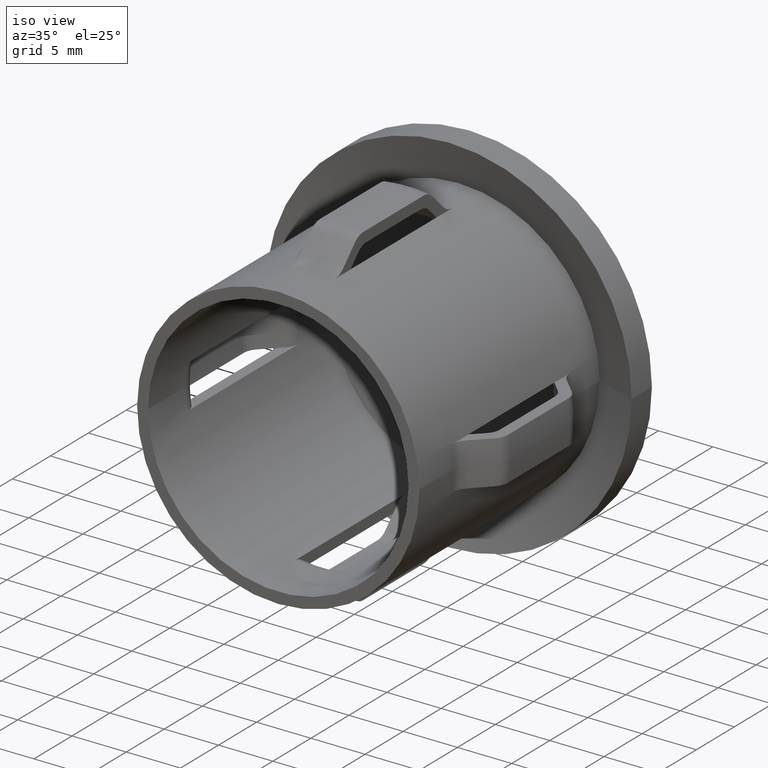
[diagram: clean part render]
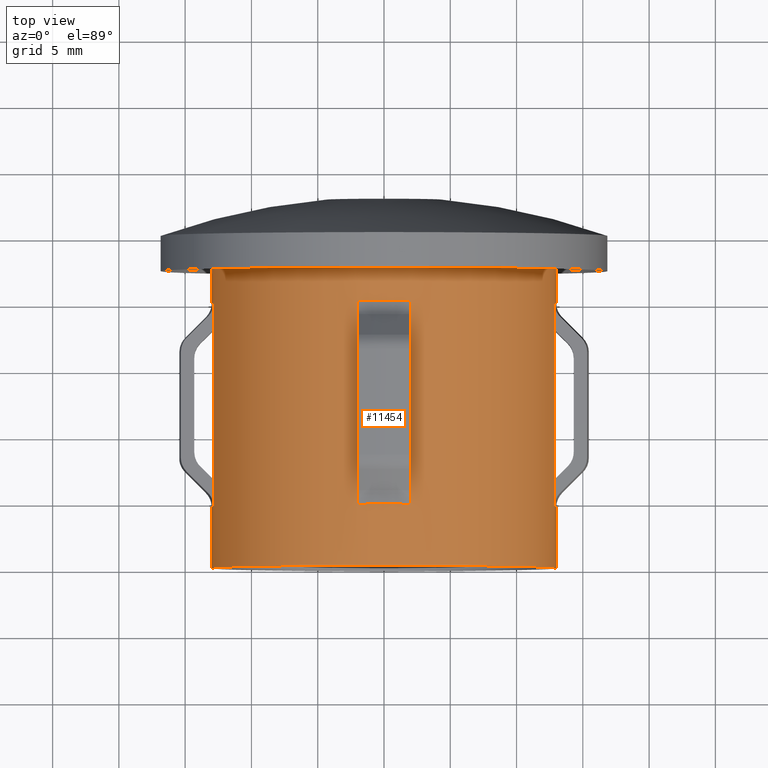
[diagram: tour spotlight — one face highlighted and labeled with its STEP entity id]
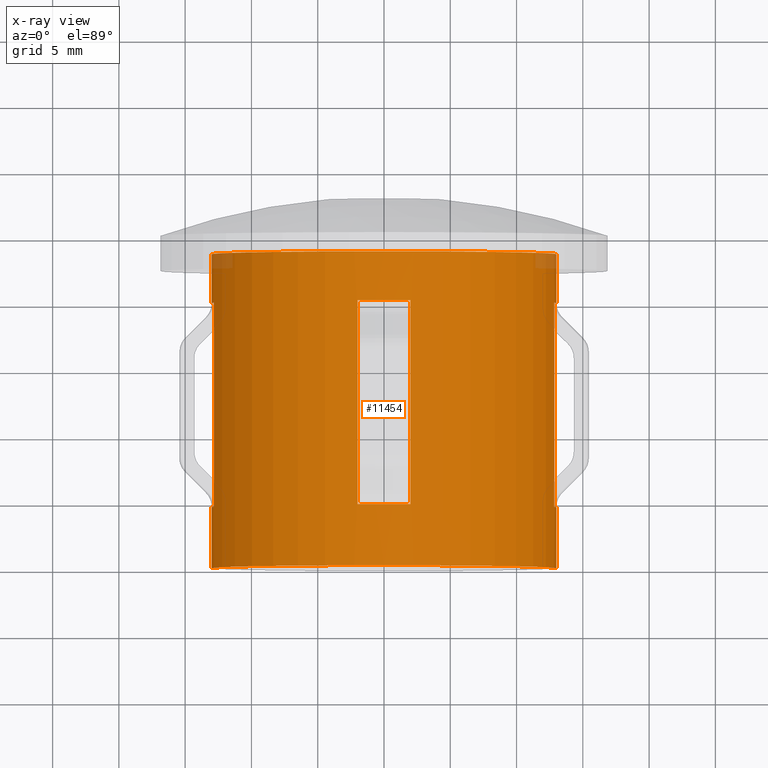
[diagram: x-ray of the same camera — body ghosted, this tour face saturated]
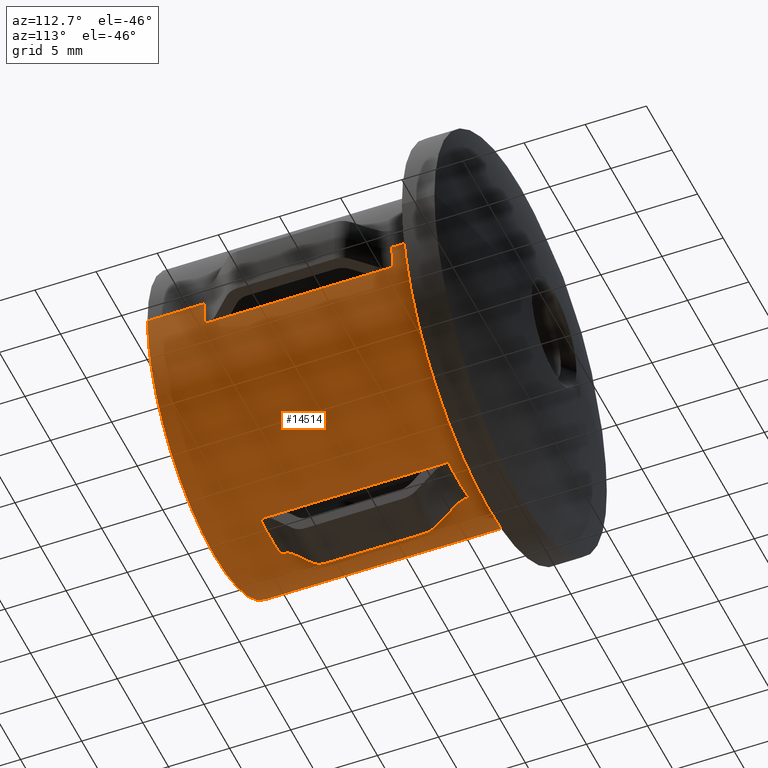
[diagram: tour spotlight — one face highlighted and labeled with its STEP entity id]
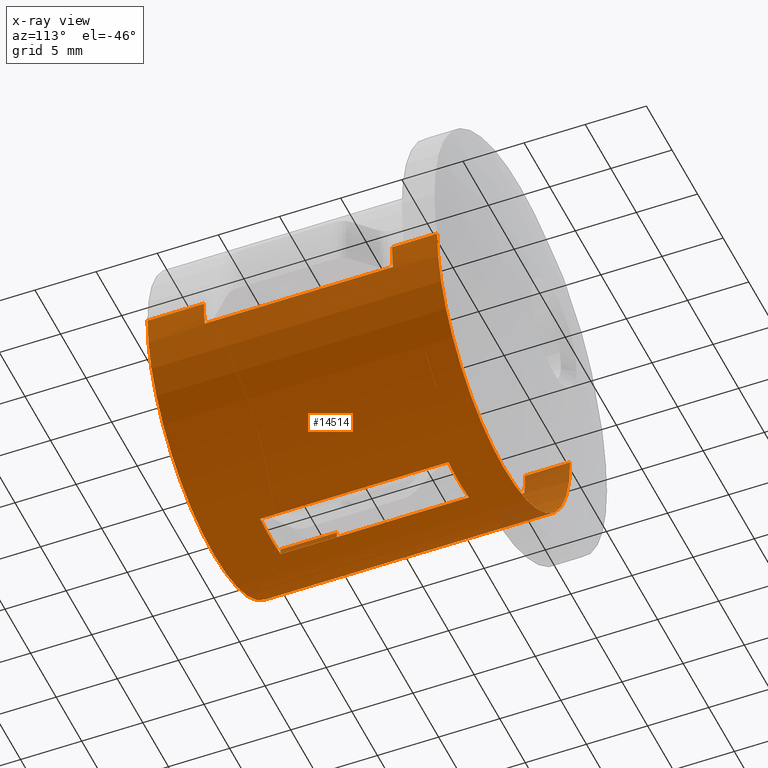
[diagram: x-ray of the same camera — body ghosted, this tour face saturated]
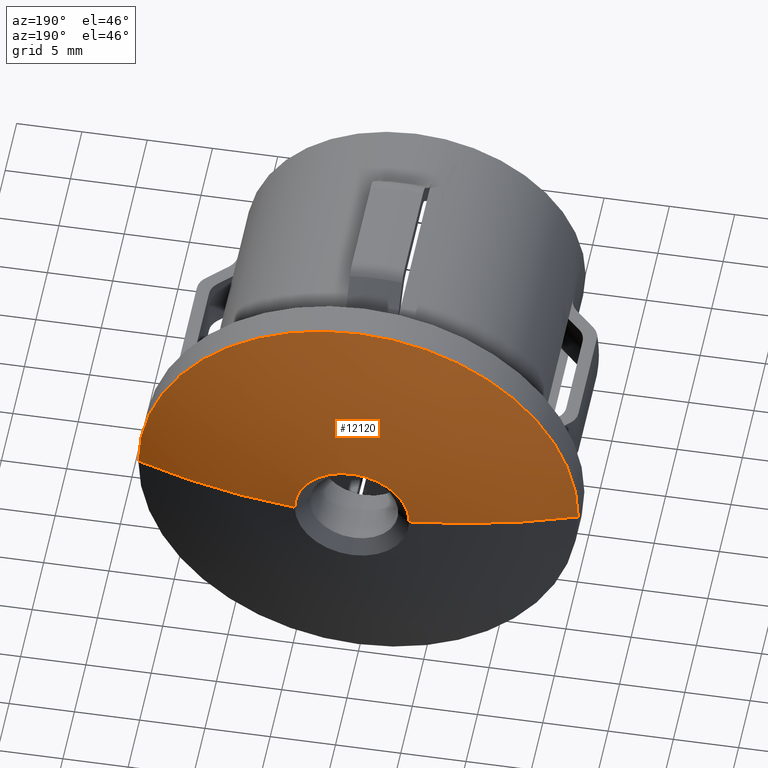
[diagram: tour spotlight — one face highlighted and labeled with its STEP entity id]
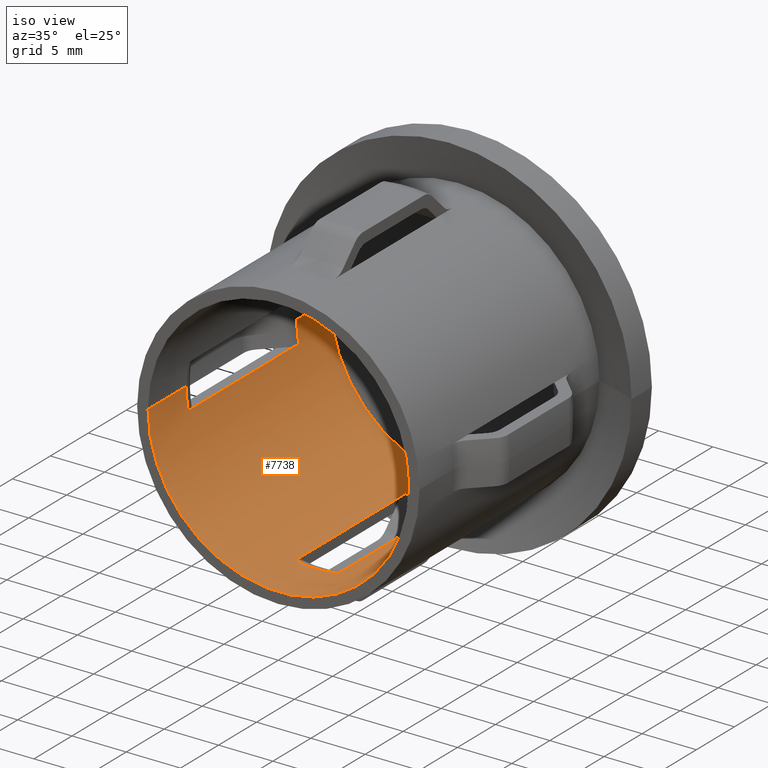
[diagram: tour spotlight — one face highlighted and labeled with its STEP entity id]
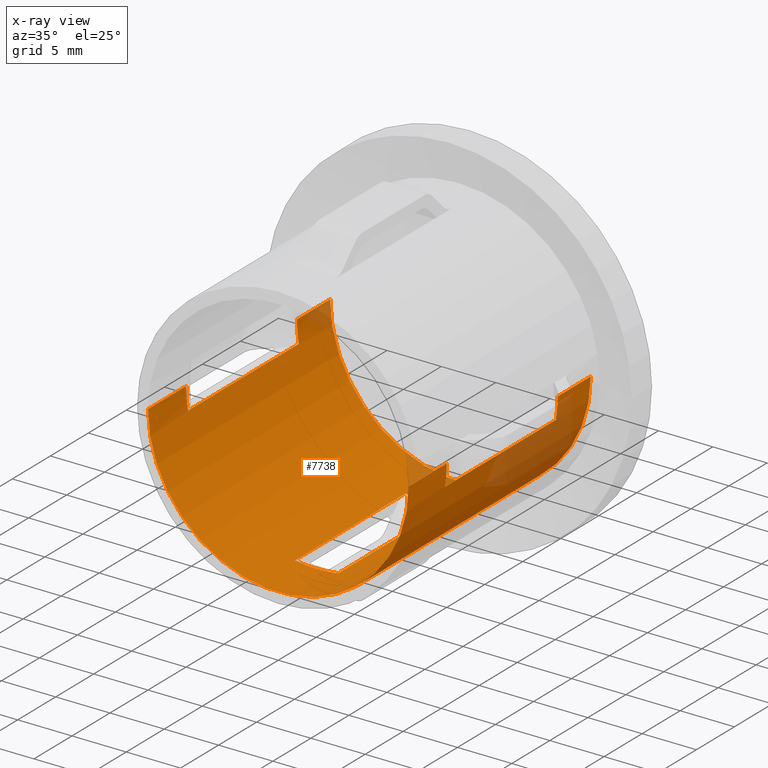
[diagram: x-ray of the same camera — body ghosted, this tour face saturated]
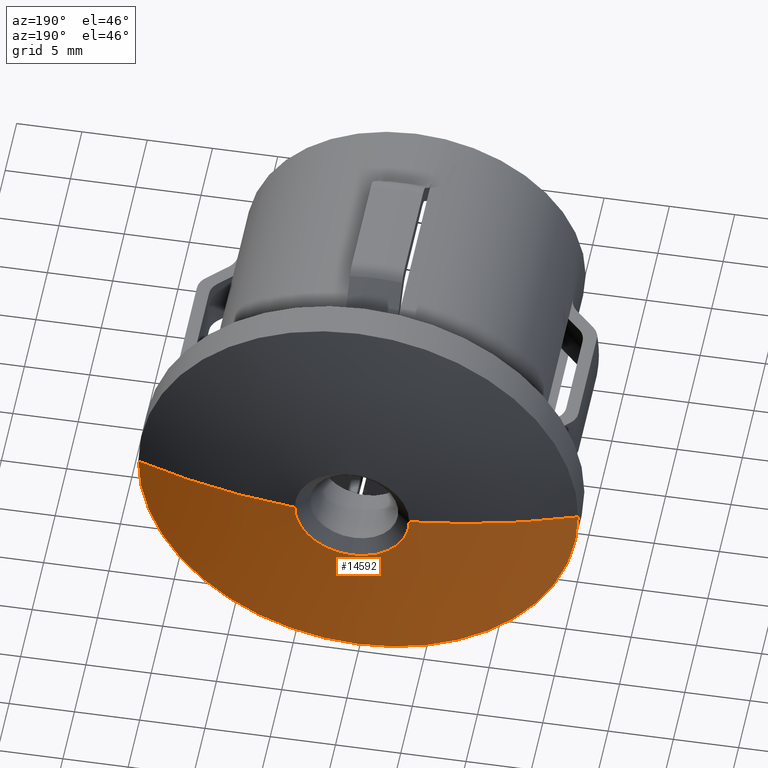
[diagram: tour spotlight — one face highlighted and labeled with its STEP entity id]
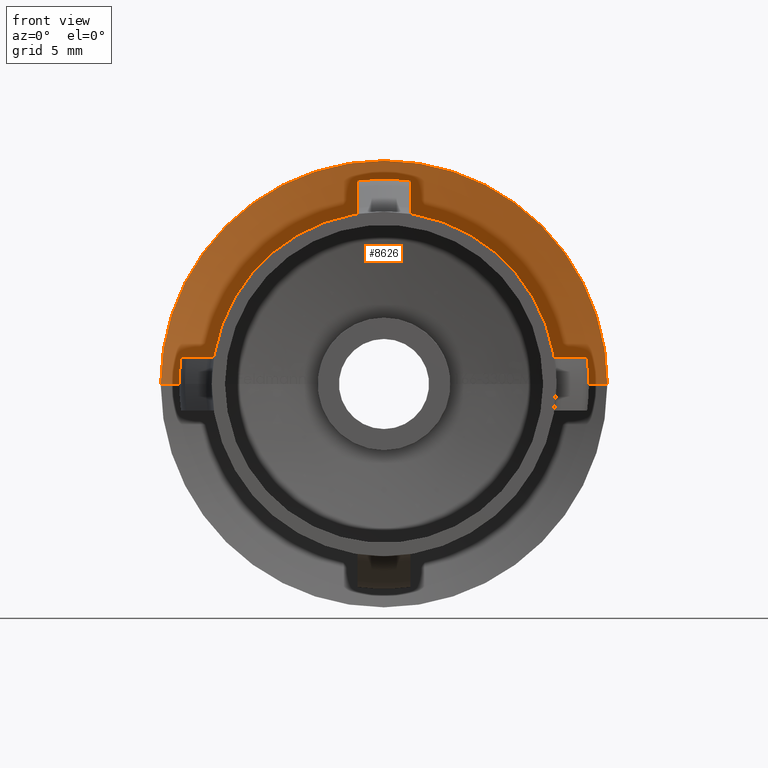
[diagram: tour spotlight — one face highlighted and labeled with its STEP entity id]
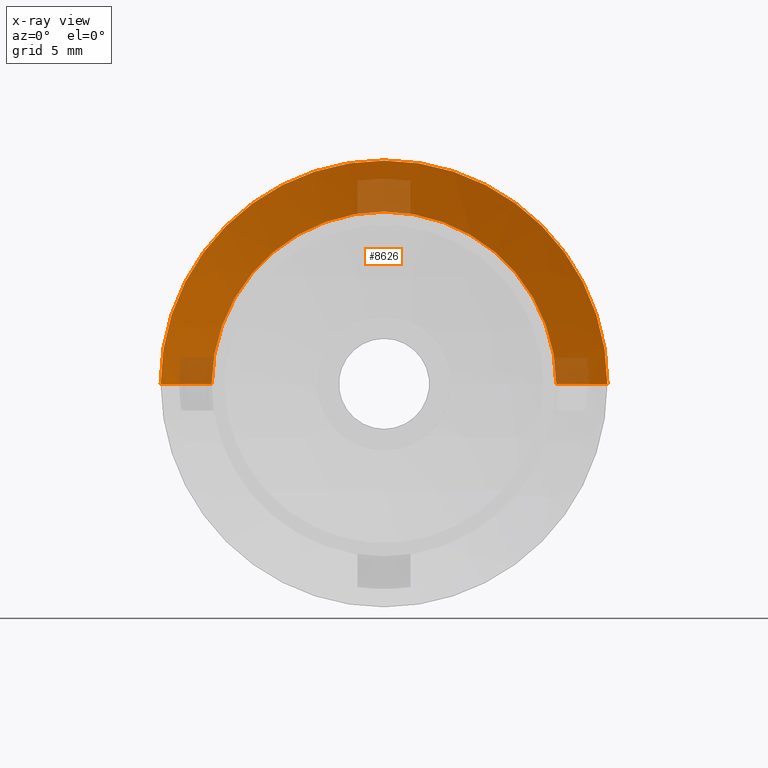
[diagram: x-ray of the same camera — body ghosted, this tour face saturated]
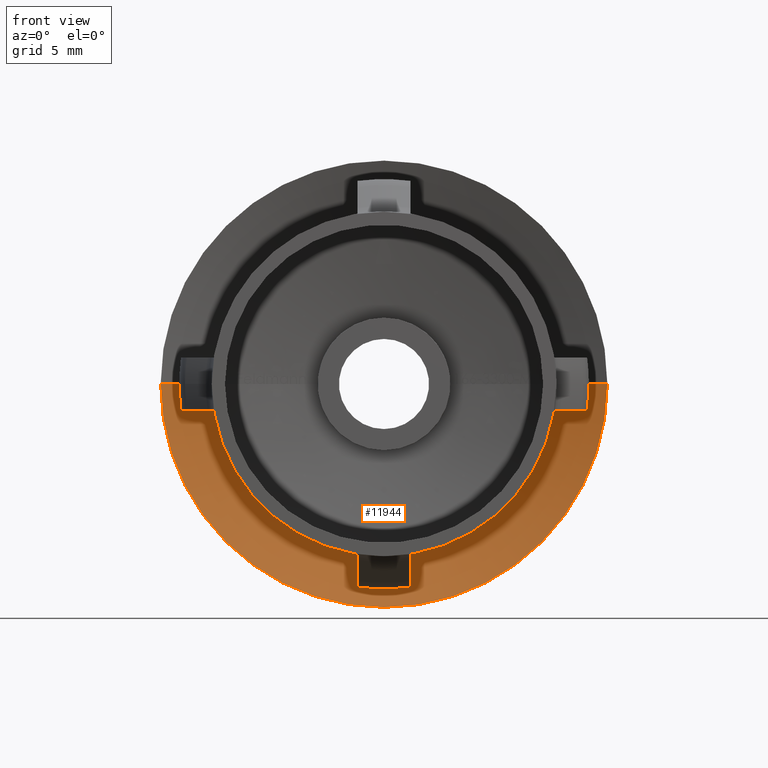
[diagram: tour spotlight — one face highlighted and labeled with its STEP entity id]
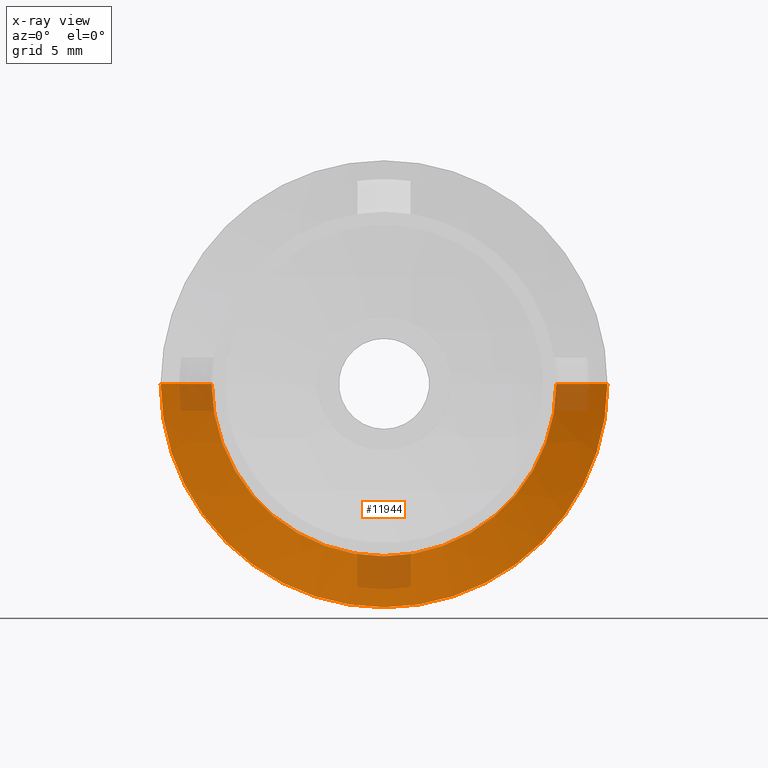
[diagram: x-ray of the same camera — body ghosted, this tour face saturated]
A machine part: a face-by-face anatomy tour. The part has 374 B-rep faces; the first image is the clean iso view, then the 7 largest visible faces are spotlighted one at a time (largest first), each with its STEP entity span.

Face 1 — top view, entity #11454. An x-ray twin of the same camera follows (body ghosted, this face saturated) — the face is partly hidden behind the body. In plain terms, the highlighted cylindrical surface (partial cylindrical patch) has radius 13 mm, axis along (-0, -1, -0).
Definition (entity closure, byte-faithful):
#26 = ORIENTED_EDGE ( 'NONE', *, *, #16188, .T. ) ;
#58 = VERTEX_POINT ( 'NONE', #1617 ) ;
#61 = DIRECTION ( 'NONE',  ( -2.904862207577519400E-015, -1.000000000000000000, -0.0000000000000000000 ) ) ;
#190 = CARTESIAN_POINT ( 'NONE',  ( -1.597674214167623900E-014, 20.00000000000003900, 0.0000000000000000000 ) ) ;
#282 = ORIENTED_EDGE ( 'NONE', *, *, #10953, .F. ) ;
#366 = CARTESIAN_POINT ( 'NONE',  ( -12.84523257866528200, 17.96446609406723400, 1.999999999999995800 ) ) ;
#434 = VECTOR ( 'NONE', #14208, 1000.000000000000000 ) ;
#461 = LINE ( 'NONE', #4949, #3634 ) ;
#573 = DIRECTION ( 'NONE',  ( 1.000000000000000000, -2.935685882422286300E-015, 0.0000000000000000000 ) ) ;
#599 = VERTEX_POINT ( 'NONE', #11950 ) ;
#629 = ORIENTED_EDGE ( 'NONE', *, *, #10535, .F. ) ;
#707 = VERTEX_POINT ( 'NONE', #3895 ) ;
#774 = CARTESIAN_POINT ( 'NONE',  ( -13.00000000000000900, 23.68643124604948400, 1.827785347727427100E-015 ) ) ;
#887 = VECTOR ( 'NONE', #10321, 1000.000000000000000 ) ;
#1007 = EDGE_CURVE ( 'NONE', #12107, #17554, #16367, .T. ) ;
#1081 = EDGE_LOOP ( 'NONE', ( #3813, #10770, #1581, #15137, #6895, #8555, #7925, #26, #629, #282, #13334, #7690, #10885, #9221, #1908, #10198 ) ) ;
#1194 = EDGE_CURVE ( 'NONE', #16130, #1568, #9992, .T. ) ;
#1309 = CARTESIAN_POINT ( 'NONE',  ( -13.00000000000007100, 25.50000000000003600, 1.592040838891567800E-015 ) ) ;
#1462 = EDGE_CURVE ( 'NONE', #12534, #707, #13981, .T. ) ;
#1499 = CIRCLE ( 'NONE', #5661, 13.00000000000006200 ) ;
#1532 = CIRCLE ( 'NONE', #12964, 13.00000000000007800 ) ;
#1568 = VERTEX_POINT ( 'NONE', #366 ) ;
#1581 = ORIENTED_EDGE ( 'NONE', *, *, #15268, .F. ) ;
#1617 = CARTESIAN_POINT ( 'NONE',  ( 12.84523257866513500, 4.614718625761439900, 1.999999999999995800 ) ) ;
#1675 = VERTEX_POINT ( 'NONE', #10249 ) ;
#1781 = DIRECTION ( 'NONE',  ( 1.000000000000000000, -2.935685882422288300E-015, 0.0000000000000000000 ) ) ;
#1908 = ORIENTED_EDGE ( 'NONE', *, *, #3332, .F. ) ;
#2023 = EDGE_CURVE ( 'NONE', #10658, #58, #3190, .T. ) ;
#2028 = CARTESIAN_POINT ( 'NONE',  ( 12.99999999999999800, 20.00000000000000000, 0.0000000000000000000 ) ) ;
#2221 = VECTOR ( 'NONE', #8382, 1000.000000000000000 ) ;
#2267 = ORIENTED_EDGE ( 'NONE', *, *, #5611, .F. ) ;
#2546 = VERTEX_POINT ( 'NONE', #9385 ) ;
#2729 = CARTESIAN_POINT ( 'NONE',  ( -6.066886455864815500E-014, 4.614718625761480700, 0.0000000000000000000 ) ) ;
#2784 = FACE_BOUND ( 'NONE', #10917, .T. ) ;
#2941 = DIRECTION ( 'NONE',  ( 1.000000000000000000, -2.935685882422274900E-015, 0.0000000000000000000 ) ) ;
#2960 = CARTESIAN_POINT ( 'NONE',  ( 12.84523257866513500, 20.00000000000000000, 1.999999999999995800 ) ) ;
#3013 = LINE ( 'NONE', #9669, #6168 ) ;
#3139 = CARTESIAN_POINT ( 'NONE',  ( -5.268167334194415500E-015, 23.68643124604944500, 0.0000000000000000000 ) ) ;
#3177 = VECTOR ( 'NONE', #5841, 1000.000000000000000 ) ;
#3190 = CIRCLE ( 'NONE', #10877, 13.00000000000006200 ) ;
#3293 = CARTESIAN_POINT ( 'NONE',  ( 2.000000000000001300, 20.00000000000000000, 12.84523257866519700 ) ) ;
#3332 = EDGE_CURVE ( 'NONE', #4143, #12534, #15538, .T. ) ;
#3413 = CIRCLE ( 'NONE', #12223, 13.00000000000000400 ) ;
#3563 = EDGE_CURVE ( 'NONE', #16818, #8187, #12175, .T. ) ;
#3566 = CARTESIAN_POINT ( 'NONE',  ( 2.000000000000001300, 20.00000000000000000, 12.84523257866519700 ) ) ;
#3634 = VECTOR ( 'NONE', #17158, 1000.000000000000000 ) ;
#3813 = ORIENTED_EDGE ( 'NONE', *, *, #11154, .T. ) ;
#3895 = CARTESIAN_POINT ( 'NONE',  ( 12.84523257866513500, 17.96446609406721300, 1.999999999999995800 ) ) ;
#4113 = VERTEX_POINT ( 'NONE', #14097 ) ;
#4121 = VERTEX_POINT ( 'NONE', #15368 ) ;
#4134 = EDGE_CURVE ( 'NONE', #8187, #12852, #4933, .T. ) ;
#4143 = VERTEX_POINT ( 'NONE', #2028 ) ;
#4378 = CARTESIAN_POINT ( 'NONE',  ( -1.999999999999998200, 20.00000000000000000, 12.84523257866521800 ) ) ;
#4497 = VECTOR ( 'NONE', #11999, 1000.000000000000000 ) ;
#4510 = AXIS2_PLACEMENT_3D ( 'NONE', #2729, #6710, #5470 ) ;
#4516 = VECTOR ( 'NONE', #4697, 1000.000000000000000 ) ;
#4697 = DIRECTION ( 'NONE',  ( -2.449293598294745400E-017, -1.000000000000000000, 0.0000000000000000000 ) ) ;
#4724 = VECTOR ( 'NONE', #16512, 1000.000000000000000 ) ;
#4730 = EDGE_CURVE ( 'NONE', #4121, #58, #12356, .T. ) ;
#4736 = CARTESIAN_POINT ( 'NONE',  ( 2.000000000000001300, 20.00000000000000000, 12.84523257866519700 ) ) ;
#4745 = CARTESIAN_POINT ( 'NONE',  ( -1.999999999999998700, 4.614718625761442500, 12.84523257866521800 ) ) ;
#4825 = VERTEX_POINT ( 'NONE', #9631 ) ;
#4933 = LINE ( 'NONE', #11431, #4516 ) ;
#4949 = CARTESIAN_POINT ( 'NONE',  ( -12.84523257866528200, 20.00000000000000000, 1.999999999999995800 ) ) ;
#4966 = LINE ( 'NONE', #4736, #5172 ) ;
#5091 = LINE ( 'NONE', #16469, #3177 ) ;
#5107 = VERTEX_POINT ( 'NONE', #4745 ) ;
#5172 = VECTOR ( 'NONE', #8800, 1000.000000000000000 ) ;
#5339 = AXIS2_PLACEMENT_3D ( 'NONE', #190, #5599, #7054 ) ;
#5470 = DIRECTION ( 'NONE',  ( 1.000000000000000000, -2.935685882422274900E-015, 0.0000000000000000000 ) ) ;
#5480 = AXIS2_PLACEMENT_3D ( 'NONE', #11575, #14302, #573 ) ;
#5482 = DIRECTION ( 'NONE',  ( -2.904862207577519400E-015, -1.000000000000000000, -0.0000000000000000000 ) ) ;
#5540 = VECTOR ( 'NONE', #5482, 1000.000000000000000 ) ;
#5599 = DIRECTION ( 'NONE',  ( -2.904862207577519400E-015, -1.000000000000000000, -0.0000000000000000000 ) ) ;
#5611 = EDGE_CURVE ( 'NONE', #12107, #16818, #14655, .T. ) ;
#5661 = AXIS2_PLACEMENT_3D ( 'NONE', #8283, #11064, #12267 ) ;
#5828 = CARTESIAN_POINT ( 'NONE',  ( -1.999999999999999100, 20.00000000000004600, 12.84523257866514500 ) ) ;
#5841 = DIRECTION ( 'NONE',  ( -2.449293598294745400E-017, -1.000000000000000000, -0.0000000000000000000 ) ) ;
#5861 = DIRECTION ( 'NONE',  ( -2.904862207577519400E-015, -1.000000000000000000, -0.0000000000000000000 ) ) ;
#5906 = DIRECTION ( 'NONE',  ( -2.449293598294745400E-017, -1.000000000000000000, 0.0000000000000000000 ) ) ;
#5908 = DIRECTION ( 'NONE',  ( -2.449293598294745400E-017, -1.000000000000000000, 0.0000000000000000000 ) ) ;
#5969 = CIRCLE ( 'NONE', #11549, 13.00000000000001200 ) ;
#6168 = VECTOR ( 'NONE', #5908, 1000.000000000000000 ) ;
#6307 = EDGE_CURVE ( 'NONE', #707, #4121, #13987, .T. ) ;
#6569 = DIRECTION ( 'NONE',  ( -2.904862207577519400E-015, -1.000000000000000000, -0.0000000000000000000 ) ) ;
#6598 = DIRECTION ( 'NONE',  ( 1.000000000000000000, -2.904862207577519000E-015, 0.0000000000000000000 ) ) ;
#6682 = DIRECTION ( 'NONE',  ( 1.000000000000000000, -2.935685882422272900E-015, 0.0000000000000000000 ) ) ;
#6710 = DIRECTION ( 'NONE',  ( -2.904862207577519400E-015, -1.000000000000000000, -0.0000000000000000000 ) ) ;
#6760 = DIRECTION ( 'NONE',  ( -2.904862207577519400E-015, -1.000000000000000000, -0.0000000000000000000 ) ) ;
#6895 = ORIENTED_EDGE ( 'NONE', *, *, #9870, .T. ) ;
#7054 = DIRECTION ( 'NONE',  ( 1.000000000000000000, -2.935685882422286300E-015, 0.0000000000000000000 ) ) ;
#7476 = VERTEX_POINT ( 'NONE', #12277 ) ;
#7513 = CARTESIAN_POINT ( 'NONE',  ( -12.84523257866528200, 6.650252531694290400, 1.999999999999995800 ) ) ;
#7637 = LINE ( 'NONE', #1309, #15275 ) ;
#7690 = ORIENTED_EDGE ( 'NONE', *, *, #4730, .F. ) ;
#7915 = VERTEX_POINT ( 'NONE', #7513 ) ;
#7925 = ORIENTED_EDGE ( 'NONE', *, *, #12445, .T. ) ;
#8060 = CARTESIAN_POINT ( 'NONE',  ( -13.00000000000007100, 25.50000000000003600, 1.592040838891567800E-015 ) ) ;
#8187 = VERTEX_POINT ( 'NONE', #10938 ) ;
#8283 = CARTESIAN_POINT ( 'NONE',  ( -6.066886455864815500E-014, 4.614718625761480700, 0.0000000000000000000 ) ) ;
#8382 = DIRECTION ( 'NONE',  ( -2.904862207577519400E-015, -1.000000000000000000, -0.0000000000000000000 ) ) ;
#8474 = FACE_OUTER_BOUND ( 'NONE', #1081, .T. ) ;
#8555 = ORIENTED_EDGE ( 'NONE', *, *, #9257, .T. ) ;
#8696 = CARTESIAN_POINT ( 'NONE',  ( 12.84523257866513500, 20.00000000000000000, 1.999999999999995800 ) ) ;
#8800 = DIRECTION ( 'NONE',  ( -2.449293598294745400E-017, -1.000000000000000000, -0.0000000000000000000 ) ) ;
#8841 = ORIENTED_EDGE ( 'NONE', *, *, #12563, .T. ) ;
#8862 = ORIENTED_EDGE ( 'NONE', *, *, #17009, .T. ) ;
#9044 = EDGE_CURVE ( 'NONE', #4825, #4143, #9659, .T. ) ;
#9221 = ORIENTED_EDGE ( 'NONE', *, *, #1462, .F. ) ;
#9257 = EDGE_CURVE ( 'NONE', #7915, #7476, #461, .T. ) ;
#9340 = DIRECTION ( 'NONE',  ( -2.904862207577519400E-015, -1.000000000000000000, -0.0000000000000000000 ) ) ;
#9385 = CARTESIAN_POINT ( 'NONE',  ( -13.00000000000012100, 4.614718625761518900, 1.592040838891570700E-015 ) ) ;
#9409 = CARTESIAN_POINT ( 'NONE',  ( 0.0000000000000000000, 25.50000000000000000, 0.0000000000000000000 ) ) ;
#9462 = CARTESIAN_POINT ( 'NONE',  ( 13.00000000000000200, 4.614718625761442500, 0.0000000000000000000 ) ) ;
#9631 = CARTESIAN_POINT ( 'NONE',  ( 12.99999999999999800, 23.68643124604940900, 0.0000000000000000000 ) ) ;
#9659 = LINE ( 'NONE', #12306, #2221 ) ;
#9669 = CARTESIAN_POINT ( 'NONE',  ( 2.000000000000001300, 20.00000000000000000, 12.84523257866519700 ) ) ;
#9870 = EDGE_CURVE ( 'NONE', #1568, #7915, #13979, .T. ) ;
#9992 = LINE ( 'NONE', #15193, #12135 ) ;
#10198 = ORIENTED_EDGE ( 'NONE', *, *, #9044, .F. ) ;
#10249 = CARTESIAN_POINT ( 'NONE',  ( 2.000000000000000900, 4.614718625761442500, 12.84523257866519700 ) ) ;
#10321 = DIRECTION ( 'NONE',  ( -2.449293598294745400E-017, -1.000000000000000000, -0.0000000000000000000 ) ) ;
#10535 = EDGE_CURVE ( 'NONE', #11791, #11288, #1532, .T. ) ;
#10553 = DIRECTION ( 'NONE',  ( 1.000000000000000000, -2.935685882422286300E-015, 0.0000000000000000000 ) ) ;
#10658 = VERTEX_POINT ( 'NONE', #9462 ) ;
#10680 = VERTEX_POINT ( 'NONE', #774 ) ;
#10770 = ORIENTED_EDGE ( 'NONE', *, *, #17444, .T. ) ;
#10877 = AXIS2_PLACEMENT_3D ( 'NONE', #11039, #16609, #2941 ) ;
#10885 = ORIENTED_EDGE ( 'NONE', *, *, #6307, .F. ) ;
#10917 = EDGE_LOOP ( 'NONE', ( #16732, #13520, #12314, #2267, #15620, #8862, #16918, #8841 ) ) ;
#10938 = CARTESIAN_POINT ( 'NONE',  ( -1.999999999999998200, 17.96446609406721300, 12.84523257866521800 ) ) ;
#10953 = EDGE_CURVE ( 'NONE', #10658, #11791, #13156, .T. ) ;
#10971 = DIRECTION ( 'NONE',  ( -2.449293598294745400E-017, -1.000000000000000000, -0.0000000000000000000 ) ) ;
#11039 = CARTESIAN_POINT ( 'NONE',  ( -6.066886455864815500E-014, 4.614718625761480700, 0.0000000000000000000 ) ) ;
#11064 = DIRECTION ( 'NONE',  ( -2.904862207577519400E-015, -1.000000000000000000, -0.0000000000000000000 ) ) ;
#11154 = EDGE_CURVE ( 'NONE', #4825, #10680, #3413, .T. ) ;
#11288 = VERTEX_POINT ( 'NONE', #14171 ) ;
#11431 = CARTESIAN_POINT ( 'NONE',  ( -1.999999999999998200, 20.00000000000000000, 12.84523257866521800 ) ) ;
#11451 = VECTOR ( 'NONE', #6760, 1000.000000000000000 ) ;
#11454 = ADVANCED_FACE ( 'NONE', ( #2784, #8474 ), #17204, .T. ) ;
#11459 = CARTESIAN_POINT ( 'NONE',  ( 13.00000000000000400, 4.007077729817786200E-016, 0.0000000000000000000 ) ) ;
#11549 = AXIS2_PLACEMENT_3D ( 'NONE', #15990, #6569, #10553 ) ;
#11575 = CARTESIAN_POINT ( 'NONE',  ( -1.597674214167623900E-014, 20.00000000000003900, 0.0000000000000000000 ) ) ;
#11791 = VERTEX_POINT ( 'NONE', #11459 ) ;
#11950 = CARTESIAN_POINT ( 'NONE',  ( -13.00000000000002800, 20.00000000000007800, 1.592040838891564600E-015 ) ) ;
#11999 = DIRECTION ( 'NONE',  ( -2.449293598294745400E-017, -1.000000000000000000, -0.0000000000000000000 ) ) ;
#12007 = CARTESIAN_POINT ( 'NONE',  ( -1.999999999999998700, 6.650252531694270900, 12.84523257866521800 ) ) ;
#12038 = CARTESIAN_POINT ( 'NONE',  ( -12.84523257866528200, 20.00000000000000000, 1.999999999999995800 ) ) ;
#12107 = VERTEX_POINT ( 'NONE', #3293 ) ;
#12135 = VECTOR ( 'NONE', #10971, 1000.000000000000000 ) ;
#12175 = LINE ( 'NONE', #4378, #4724 ) ;
#12223 = AXIS2_PLACEMENT_3D ( 'NONE', #3139, #5861, #1781 ) ;
#12267 = DIRECTION ( 'NONE',  ( 1.000000000000000000, -2.935685882422274900E-015, 0.0000000000000000000 ) ) ;
#12277 = CARTESIAN_POINT ( 'NONE',  ( -12.84523257866528200, 4.614718625761442500, 1.999999999999995800 ) ) ;
#12306 = CARTESIAN_POINT ( 'NONE',  ( 13.00000000000007100, 25.49999999999996100, 0.0000000000000000000 ) ) ;
#12314 = ORIENTED_EDGE ( 'NONE', *, *, #3563, .F. ) ;
#12356 = LINE ( 'NONE', #14841, #4497 ) ;
#12445 = EDGE_CURVE ( 'NONE', #7476, #2546, #12697, .T. ) ;
#12534 = VERTEX_POINT ( 'NONE', #2960 ) ;
#12563 = EDGE_CURVE ( 'NONE', #1675, #5107, #1499, .T. ) ;
#12679 = EDGE_CURVE ( 'NONE', #12852, #5107, #5091, .T. ) ;
#12697 = CIRCLE ( 'NONE', #4510, 13.00000000000006200 ) ;
#12852 = VERTEX_POINT ( 'NONE', #12007 ) ;
#12964 = AXIS2_PLACEMENT_3D ( 'NONE', #14588, #17344, #6598 ) ;
#13054 = CARTESIAN_POINT ( 'NONE',  ( 2.000000000000001300, 17.96446609406724800, 12.84523257866519700 ) ) ;
#13156 = LINE ( 'NONE', #13576, #5540 ) ;
#13320 = EDGE_CURVE ( 'NONE', #4113, #1675, #4966, .T. ) ;
#13334 = ORIENTED_EDGE ( 'NONE', *, *, #2023, .T. ) ;
#13520 = ORIENTED_EDGE ( 'NONE', *, *, #4134, .F. ) ;
#13576 = CARTESIAN_POINT ( 'NONE',  ( 13.00000000000007100, 25.49999999999996100, 0.0000000000000000000 ) ) ;
#13740 = DIRECTION ( 'NONE',  ( -2.449293598294745400E-017, -1.000000000000000000, 0.0000000000000000000 ) ) ;
#13979 = LINE ( 'NONE', #15396, #16157 ) ;
#13981 = LINE ( 'NONE', #8696, #434 ) ;
#13987 = LINE ( 'NONE', #16482, #17206 ) ;
#14097 = CARTESIAN_POINT ( 'NONE',  ( 2.000000000000000900, 6.650252531694226500, 12.84523257866519700 ) ) ;
#14098 = AXIS2_PLACEMENT_3D ( 'NONE', #9409, #9340, #6682 ) ;
#14171 = CARTESIAN_POINT ( 'NONE',  ( -13.00000000000015100, 7.592712516999773700E-014, 1.592040838891572700E-015 ) ) ;
#14208 = DIRECTION ( 'NONE',  ( -2.449293598294745400E-017, -1.000000000000000000, -0.0000000000000000000 ) ) ;
#14302 = DIRECTION ( 'NONE',  ( -2.904862207577519400E-015, -1.000000000000000000, -0.0000000000000000000 ) ) ;
#14588 = CARTESIAN_POINT ( 'NONE',  ( -7.407398629322662400E-014, 3.816391647148975600E-014, 0.0000000000000000000 ) ) ;
#14655 = CIRCLE ( 'NONE', #5480, 13.00000000000001200 ) ;
#14841 = CARTESIAN_POINT ( 'NONE',  ( 12.84523257866513500, 20.00000000000000000, 1.999999999999995800 ) ) ;
#15137 = ORIENTED_EDGE ( 'NONE', *, *, #1194, .T. ) ;
#15193 = CARTESIAN_POINT ( 'NONE',  ( -12.84523257866528200, 20.00000000000000000, 1.999999999999995800 ) ) ;
#15268 = EDGE_CURVE ( 'NONE', #16130, #599, #5969, .T. ) ;
#15275 = VECTOR ( 'NONE', #61, 1000.000000000000000 ) ;
#15368 = CARTESIAN_POINT ( 'NONE',  ( 12.84523257866513500, 6.650252531694270900, 1.999999999999995800 ) ) ;
#15396 = CARTESIAN_POINT ( 'NONE',  ( -12.84523257866528200, 20.00000000000000000, 1.999999999999995800 ) ) ;
#15500 = LINE ( 'NONE', #8060, #11451 ) ;
#15538 = CIRCLE ( 'NONE', #5339, 13.00000000000001200 ) ;
#15620 = ORIENTED_EDGE ( 'NONE', *, *, #1007, .T. ) ;
#15990 = CARTESIAN_POINT ( 'NONE',  ( -1.597674214167623900E-014, 20.00000000000003900, 0.0000000000000000000 ) ) ;
#16130 = VERTEX_POINT ( 'NONE', #12038 ) ;
#16157 = VECTOR ( 'NONE', #5906, 1000.000000000000000 ) ;
#16188 = EDGE_CURVE ( 'NONE', #2546, #11288, #15500, .T. ) ;
#16367 = LINE ( 'NONE', #3566, #887 ) ;
#16469 = CARTESIAN_POINT ( 'NONE',  ( -1.999999999999998200, 20.00000000000000000, 12.84523257866521800 ) ) ;
#16482 = CARTESIAN_POINT ( 'NONE',  ( 12.84523257866513500, 20.00000000000000000, 1.999999999999995800 ) ) ;
#16512 = DIRECTION ( 'NONE',  ( -2.449293598294745400E-017, -1.000000000000000000, -0.0000000000000000000 ) ) ;
#16609 = DIRECTION ( 'NONE',  ( -2.904862207577519400E-015, -1.000000000000000000, -0.0000000000000000000 ) ) ;
#16732 = ORIENTED_EDGE ( 'NONE', *, *, #12679, .F. ) ;
#16818 = VERTEX_POINT ( 'NONE', #5828 ) ;
#16918 = ORIENTED_EDGE ( 'NONE', *, *, #13320, .T. ) ;
#17009 = EDGE_CURVE ( 'NONE', #17554, #4113, #3013, .T. ) ;
#17158 = DIRECTION ( 'NONE',  ( -2.449293598294745400E-017, -1.000000000000000000, -0.0000000000000000000 ) ) ;
#17204 = CYLINDRICAL_SURFACE ( 'NONE', #14098, 13.00000000000007100 ) ;
#17206 = VECTOR ( 'NONE', #13740, 1000.000000000000000 ) ;
#17344 = DIRECTION ( 'NONE',  ( -2.904862207577519400E-015, -1.000000000000000000, -0.0000000000000000000 ) ) ;
#17444 = EDGE_CURVE ( 'NONE', #10680, #599, #7637, .T. ) ;
#17554 = VERTEX_POINT ( 'NONE', #13054 ) ;

Face 2 — auxiliary view, entity #14514. An x-ray twin of the same camera follows (body ghosted, this face saturated) — the face is partly hidden behind the body. In plain terms, the highlighted cylindrical surface (partial cylindrical patch) has radius 13 mm, axis along (-0, -1, -0).
Definition (entity closure, byte-faithful):
#4 = VERTEX_POINT ( 'NONE', #2868 ) ;
#61 = DIRECTION ( 'NONE',  ( -2.904862207577519400E-015, -1.000000000000000000, -0.0000000000000000000 ) ) ;
#236 = ORIENTED_EDGE ( 'NONE', *, *, #14757, .F. ) ;
#237 = ORIENTED_EDGE ( 'NONE', *, *, #12202, .F. ) ;
#432 = VECTOR ( 'NONE', #16748, 1000.000000000000000 ) ;
#515 = DIRECTION ( 'NONE',  ( -2.449293598294745400E-017, -1.000000000000000000, -0.0000000000000000000 ) ) ;
#584 = CARTESIAN_POINT ( 'NONE',  ( 12.84523257866513300, 20.00000000000000000, -2.000000000000004900 ) ) ;
#599 = VERTEX_POINT ( 'NONE', #11950 ) ;
#774 = CARTESIAN_POINT ( 'NONE',  ( -13.00000000000000900, 23.68643124604948400, 1.827785347727427100E-015 ) ) ;
#785 = VERTEX_POINT ( 'NONE', #6908 ) ;
#874 = AXIS2_PLACEMENT_3D ( 'NONE', #7697, #3922, #6933 ) ;
#1167 = EDGE_CURVE ( 'NONE', #8153, #10658, #12952, .T. ) ;
#1302 = VERTEX_POINT ( 'NONE', #2176 ) ;
#1309 = CARTESIAN_POINT ( 'NONE',  ( -13.00000000000007100, 25.50000000000003600, 1.592040838891567800E-015 ) ) ;
#1414 = AXIS2_PLACEMENT_3D ( 'NONE', #6452, #13314, #5265 ) ;
#1518 = LINE ( 'NONE', #584, #15484 ) ;
#1546 = VERTEX_POINT ( 'NONE', #12405 ) ;
#1769 = CARTESIAN_POINT ( 'NONE',  ( 12.84523257866513300, 20.00000000000000000, -2.000000000000004900 ) ) ;
#2028 = CARTESIAN_POINT ( 'NONE',  ( 12.99999999999999800, 20.00000000000000000, 0.0000000000000000000 ) ) ;
#2069 = ORIENTED_EDGE ( 'NONE', *, *, #15266, .T. ) ;
#2176 = CARTESIAN_POINT ( 'NONE',  ( 2.000000000000001300, 17.96446609406721300, -12.84523257866519700 ) ) ;
#2221 = VECTOR ( 'NONE', #8382, 1000.000000000000000 ) ;
#2257 = DIRECTION ( 'NONE',  ( 1.000000000000000000, -2.935685882422274900E-015, 0.0000000000000000000 ) ) ;
#2343 = DIRECTION ( 'NONE',  ( 1.000000000000000000, -2.935685882422286300E-015, 0.0000000000000000000 ) ) ;
#2460 = DIRECTION ( 'NONE',  ( -2.904862207577519400E-015, -1.000000000000000000, -0.0000000000000000000 ) ) ;
#2546 = VERTEX_POINT ( 'NONE', #9385 ) ;
#2565 = ORIENTED_EDGE ( 'NONE', *, *, #15375, .F. ) ;
#2693 = ORIENTED_EDGE ( 'NONE', *, *, #8008, .T. ) ;
#2804 = LINE ( 'NONE', #16026, #8698 ) ;
#2848 = DIRECTION ( 'NONE',  ( -2.449293598294745400E-017, -1.000000000000000000, -0.0000000000000000000 ) ) ;
#2868 = CARTESIAN_POINT ( 'NONE',  ( -1.999999999999997800, 20.00000000000000000, -12.84523257866522000 ) ) ;
#3015 = LINE ( 'NONE', #4984, #10204 ) ;
#3043 = LINE ( 'NONE', #15180, #3245 ) ;
#3245 = VECTOR ( 'NONE', #12617, 1000.000000000000000 ) ;
#3280 = EDGE_CURVE ( 'NONE', #11288, #11791, #14485, .T. ) ;
#3284 = AXIS2_PLACEMENT_3D ( 'NONE', #15239, #8633, #4412 ) ;
#3316 = DIRECTION ( 'NONE',  ( -2.449293598294745400E-017, -1.000000000000000000, 0.0000000000000000000 ) ) ;
#3385 = ORIENTED_EDGE ( 'NONE', *, *, #17235, .T. ) ;
#3452 = ORIENTED_EDGE ( 'NONE', *, *, #17444, .F. ) ;
#3665 = DIRECTION ( 'NONE',  ( -2.904862207577519400E-015, -1.000000000000000000, -0.0000000000000000000 ) ) ;
#3746 = CARTESIAN_POINT ( 'NONE',  ( -1.999999999999998200, 6.650252531694244200, -12.84523257866522000 ) ) ;
#3922 = DIRECTION ( 'NONE',  ( -2.904862207577519400E-015, -1.000000000000000000, -0.0000000000000000000 ) ) ;
#4059 = LINE ( 'NONE', #12711, #432 ) ;
#4143 = VERTEX_POINT ( 'NONE', #2028 ) ;
#4412 = DIRECTION ( 'NONE',  ( 1.000000000000000000, -2.904862207577519000E-015, 0.0000000000000000000 ) ) ;
#4542 = CIRCLE ( 'NONE', #874, 13.00000000000001200 ) ;
#4825 = VERTEX_POINT ( 'NONE', #9631 ) ;
#4984 = CARTESIAN_POINT ( 'NONE',  ( -1.999999999999997800, 20.00000000000000000, -12.84523257866522000 ) ) ;
#5156 = FACE_OUTER_BOUND ( 'NONE', #13214, .T. ) ;
#5186 = CARTESIAN_POINT ( 'NONE',  ( -1.597674214167623900E-014, 20.00000000000003900, 0.0000000000000000000 ) ) ;
#5265 = DIRECTION ( 'NONE',  ( 1.000000000000000000, -2.935685882422274900E-015, 0.0000000000000000000 ) ) ;
#5311 = DIRECTION ( 'NONE',  ( -2.904862207577519400E-015, -1.000000000000000000, -0.0000000000000000000 ) ) ;
#5482 = DIRECTION ( 'NONE',  ( -2.904862207577519400E-015, -1.000000000000000000, -0.0000000000000000000 ) ) ;
#5540 = VECTOR ( 'NONE', #5482, 1000.000000000000000 ) ;
#5659 = EDGE_CURVE ( 'NONE', #1302, #785, #2804, .T. ) ;
#5839 = AXIS2_PLACEMENT_3D ( 'NONE', #5186, #9087, #2343 ) ;
#6216 = ORIENTED_EDGE ( 'NONE', *, *, #11378, .T. ) ;
#6366 = EDGE_CURVE ( 'NONE', #7636, #15655, #1518, .T. ) ;
#6452 = CARTESIAN_POINT ( 'NONE',  ( -6.066886455864815500E-014, 4.614718625761480700, 0.0000000000000000000 ) ) ;
#6456 = DIRECTION ( 'NONE',  ( -2.449293598294745400E-017, -1.000000000000000000, -0.0000000000000000000 ) ) ;
#6549 = AXIS2_PLACEMENT_3D ( 'NONE', #15684, #15863, #2257 ) ;
#6596 = VECTOR ( 'NONE', #2848, 1000.000000000000000 ) ;
#6616 = VECTOR ( 'NONE', #7569, 1000.000000000000000 ) ;
#6652 = LINE ( 'NONE', #9179, #8131 ) ;
#6760 = DIRECTION ( 'NONE',  ( -2.904862207577519400E-015, -1.000000000000000000, -0.0000000000000000000 ) ) ;
#6818 = CIRCLE ( 'NONE', #14949, 13.00000000000000400 ) ;
#6902 = EDGE_CURVE ( 'NONE', #2546, #11584, #11242, .T. ) ;
#6908 = CARTESIAN_POINT ( 'NONE',  ( 2.000000000000000900, 6.650252531694270900, -12.84523257866519700 ) ) ;
#6933 = DIRECTION ( 'NONE',  ( 1.000000000000000000, -2.935685882422286300E-015, 0.0000000000000000000 ) ) ;
#7085 = CARTESIAN_POINT ( 'NONE',  ( -12.84523257866528000, 17.96446609406721300, -2.000000000000004900 ) ) ;
#7464 = ORIENTED_EDGE ( 'NONE', *, *, #13813, .F. ) ;
#7563 = VERTEX_POINT ( 'NONE', #10959 ) ;
#7569 = DIRECTION ( 'NONE',  ( -2.449293598294745400E-017, -1.000000000000000000, 0.0000000000000000000 ) ) ;
#7636 = VERTEX_POINT ( 'NONE', #11075 ) ;
#7637 = LINE ( 'NONE', #1309, #15275 ) ;
#7697 = CARTESIAN_POINT ( 'NONE',  ( -1.597674214167623900E-014, 20.00000000000003900, 0.0000000000000000000 ) ) ;
#7897 = ORIENTED_EDGE ( 'NONE', *, *, #9918, .T. ) ;
#7941 = VERTEX_POINT ( 'NONE', #3746 ) ;
#8008 = EDGE_CURVE ( 'NONE', #14198, #1546, #10717, .T. ) ;
#8060 = CARTESIAN_POINT ( 'NONE',  ( -13.00000000000007100, 25.50000000000003600, 1.592040838891567800E-015 ) ) ;
#8131 = VECTOR ( 'NONE', #13074, 1000.000000000000000 ) ;
#8153 = VERTEX_POINT ( 'NONE', #9534 ) ;
#8247 = ORIENTED_EDGE ( 'NONE', *, *, #9939, .T. ) ;
#8319 = CIRCLE ( 'NONE', #8580, 13.00000000000001200 ) ;
#8336 = EDGE_CURVE ( 'NONE', #7563, #17470, #14752, .T. ) ;
#8368 = VERTEX_POINT ( 'NONE', #12693 ) ;
#8382 = DIRECTION ( 'NONE',  ( -2.904862207577519400E-015, -1.000000000000000000, -0.0000000000000000000 ) ) ;
#8509 = CYLINDRICAL_SURFACE ( 'NONE', #10174, 13.00000000000007100 ) ;
#8580 = AXIS2_PLACEMENT_3D ( 'NONE', #11870, #2460, #14717 ) ;
#8633 = DIRECTION ( 'NONE',  ( -2.904862207577519400E-015, -1.000000000000000000, -0.0000000000000000000 ) ) ;
#8698 = VECTOR ( 'NONE', #9042, 1000.000000000000000 ) ;
#9042 = DIRECTION ( 'NONE',  ( -2.449293598294745400E-017, -1.000000000000000000, 0.0000000000000000000 ) ) ;
#9044 = EDGE_CURVE ( 'NONE', #4825, #4143, #9659, .T. ) ;
#9087 = DIRECTION ( 'NONE',  ( -2.904862207577519400E-015, -1.000000000000000000, -0.0000000000000000000 ) ) ;
#9179 = CARTESIAN_POINT ( 'NONE',  ( -12.84523257866528000, 20.00000000000000000, -2.000000000000004900 ) ) ;
#9222 = CARTESIAN_POINT ( 'NONE',  ( -1.999999999999998200, 4.614718625761442500, -12.84523257866522000 ) ) ;
#9312 = ORIENTED_EDGE ( 'NONE', *, *, #10953, .T. ) ;
#9322 = DIRECTION ( 'NONE',  ( -2.449293598294745400E-017, -1.000000000000000000, -0.0000000000000000000 ) ) ;
#9376 = VECTOR ( 'NONE', #13567, 1000.000000000000000 ) ;
#9385 = CARTESIAN_POINT ( 'NONE',  ( -13.00000000000012100, 4.614718625761518900, 1.592040838891570700E-015 ) ) ;
#9462 = CARTESIAN_POINT ( 'NONE',  ( 13.00000000000000200, 4.614718625761442500, 0.0000000000000000000 ) ) ;
#9534 = CARTESIAN_POINT ( 'NONE',  ( 12.84523257866513300, 4.614718625761439900, -2.000000000000004900 ) ) ;
#9631 = CARTESIAN_POINT ( 'NONE',  ( 12.99999999999999800, 23.68643124604940900, 0.0000000000000000000 ) ) ;
#9659 = LINE ( 'NONE', #12306, #2221 ) ;
#9714 = DIRECTION ( 'NONE',  ( -2.449293598294745400E-017, -1.000000000000000000, -0.0000000000000000000 ) ) ;
#9918 = EDGE_CURVE ( 'NONE', #14540, #7636, #10189, .T. ) ;
#9939 = EDGE_CURVE ( 'NONE', #15655, #8153, #4059, .T. ) ;
#10009 = LINE ( 'NONE', #11060, #14020 ) ;
#10174 = AXIS2_PLACEMENT_3D ( 'NONE', #11774, #3665, #10348 ) ;
#10189 = LINE ( 'NONE', #1769, #6596 ) ;
#10204 = VECTOR ( 'NONE', #6456, 1000.000000000000000 ) ;
#10348 = DIRECTION ( 'NONE',  ( 1.000000000000000000, -2.935685882422272900E-015, 0.0000000000000000000 ) ) ;
#10478 = DIRECTION ( 'NONE',  ( 1.000000000000000000, -2.935685882422274900E-015, 0.0000000000000000000 ) ) ;
#10658 = VERTEX_POINT ( 'NONE', #9462 ) ;
#10680 = VERTEX_POINT ( 'NONE', #774 ) ;
#10717 = CIRCLE ( 'NONE', #1414, 13.00000000000006200 ) ;
#10953 = EDGE_CURVE ( 'NONE', #10658, #11791, #13156, .T. ) ;
#10959 = CARTESIAN_POINT ( 'NONE',  ( -12.84523257866515800, 20.00000000000007800, -2.000000000000005300 ) ) ;
#11060 = CARTESIAN_POINT ( 'NONE',  ( 2.000000000000001300, 20.00000000000000000, -12.84523257866519700 ) ) ;
#11075 = CARTESIAN_POINT ( 'NONE',  ( 12.84523257866513300, 17.96446609406726200, -2.000000000000004900 ) ) ;
#11131 = VECTOR ( 'NONE', #515, 1000.000000000000000 ) ;
#11232 = VERTEX_POINT ( 'NONE', #11577 ) ;
#11242 = CIRCLE ( 'NONE', #16492, 13.00000000000006200 ) ;
#11288 = VERTEX_POINT ( 'NONE', #14171 ) ;
#11378 = EDGE_CURVE ( 'NONE', #10680, #4825, #6818, .T. ) ;
#11444 = VERTEX_POINT ( 'NONE', #14798 ) ;
#11451 = VECTOR ( 'NONE', #6760, 1000.000000000000000 ) ;
#11459 = CARTESIAN_POINT ( 'NONE',  ( 13.00000000000000400, 4.007077729817786200E-016, 0.0000000000000000000 ) ) ;
#11577 = CARTESIAN_POINT ( 'NONE',  ( -1.999999999999997800, 17.96446609406724400, -12.84523257866522000 ) ) ;
#11584 = VERTEX_POINT ( 'NONE', #15644 ) ;
#11774 = CARTESIAN_POINT ( 'NONE',  ( 0.0000000000000000000, 25.50000000000000000, 0.0000000000000000000 ) ) ;
#11791 = VERTEX_POINT ( 'NONE', #11459 ) ;
#11870 = CARTESIAN_POINT ( 'NONE',  ( -1.597674214167623900E-014, 20.00000000000003900, 0.0000000000000000000 ) ) ;
#11950 = CARTESIAN_POINT ( 'NONE',  ( -13.00000000000002800, 20.00000000000007800, 1.592040838891564600E-015 ) ) ;
#12110 = ORIENTED_EDGE ( 'NONE', *, *, #1167, .T. ) ;
#12193 = CARTESIAN_POINT ( 'NONE',  ( -5.268167334194415500E-015, 23.68643124604944500, 0.0000000000000000000 ) ) ;
#12202 = EDGE_CURVE ( 'NONE', #599, #7563, #14186, .T. ) ;
#12306 = CARTESIAN_POINT ( 'NONE',  ( 13.00000000000007100, 25.49999999999996100, 0.0000000000000000000 ) ) ;
#12405 = CARTESIAN_POINT ( 'NONE',  ( 2.000000000000000900, 4.614718625761442500, -12.84523257866519700 ) ) ;
#12617 = DIRECTION ( 'NONE',  ( -2.449293598294745400E-017, -1.000000000000000000, -0.0000000000000000000 ) ) ;
#12693 = CARTESIAN_POINT ( 'NONE',  ( 2.000000000000002200, 20.00000000000003200, -12.84523257866514000 ) ) ;
#12711 = CARTESIAN_POINT ( 'NONE',  ( 12.84523257866513300, 20.00000000000000000, -2.000000000000004900 ) ) ;
#12952 = CIRCLE ( 'NONE', #6549, 13.00000000000006200 ) ;
#13066 = CARTESIAN_POINT ( 'NONE',  ( -6.066886455864815500E-014, 4.614718625761480700, 0.0000000000000000000 ) ) ;
#13074 = DIRECTION ( 'NONE',  ( -2.449293598294745400E-017, -1.000000000000000000, 0.0000000000000000000 ) ) ;
#13148 = ORIENTED_EDGE ( 'NONE', *, *, #14817, .F. ) ;
#13156 = LINE ( 'NONE', #13576, #5540 ) ;
#13214 = EDGE_LOOP ( 'NONE', ( #3452, #6216, #14277, #13148, #7897, #16534, #8247, #12110, #9312, #15639, #13875, #17458, #16594, #7464, #13274, #237 ) ) ;
#13274 = ORIENTED_EDGE ( 'NONE', *, *, #8336, .F. ) ;
#13285 = CARTESIAN_POINT ( 'NONE',  ( 2.000000000000001300, 20.00000000000000000, -12.84523257866519700 ) ) ;
#13314 = DIRECTION ( 'NONE',  ( -2.904862207577519400E-015, -1.000000000000000000, -0.0000000000000000000 ) ) ;
#13419 = VECTOR ( 'NONE', #9322, 1000.000000000000000 ) ;
#13537 = EDGE_CURVE ( 'NONE', #4, #8368, #4542, .T. ) ;
#13538 = DIRECTION ( 'NONE',  ( 1.000000000000000000, -2.935685882422288300E-015, 0.0000000000000000000 ) ) ;
#13567 = DIRECTION ( 'NONE',  ( -2.449293598294745400E-017, -1.000000000000000000, -0.0000000000000000000 ) ) ;
#13576 = CARTESIAN_POINT ( 'NONE',  ( 13.00000000000007100, 25.49999999999996100, 0.0000000000000000000 ) ) ;
#13689 = EDGE_CURVE ( 'NONE', #7941, #14198, #3043, .T. ) ;
#13813 = EDGE_CURVE ( 'NONE', #17470, #11444, #6652, .T. ) ;
#13875 = ORIENTED_EDGE ( 'NONE', *, *, #16188, .F. ) ;
#13885 = ORIENTED_EDGE ( 'NONE', *, *, #5659, .F. ) ;
#14020 = VECTOR ( 'NONE', #9714, 1000.000000000000000 ) ;
#14171 = CARTESIAN_POINT ( 'NONE',  ( -13.00000000000015100, 7.592712516999773700E-014, 1.592040838891572700E-015 ) ) ;
#14186 = CIRCLE ( 'NONE', #5839, 13.00000000000001200 ) ;
#14198 = VERTEX_POINT ( 'NONE', #9222 ) ;
#14240 = ORIENTED_EDGE ( 'NONE', *, *, #13537, .F. ) ;
#14277 = ORIENTED_EDGE ( 'NONE', *, *, #9044, .T. ) ;
#14315 = CARTESIAN_POINT ( 'NONE',  ( -1.999999999999997800, 20.00000000000000000, -12.84523257866522000 ) ) ;
#14485 = CIRCLE ( 'NONE', #3284, 13.00000000000007800 ) ;
#14514 = ADVANCED_FACE ( 'NONE', ( #5156, #14689 ), #8509, .T. ) ;
#14540 = VERTEX_POINT ( 'NONE', #15799 ) ;
#14689 = FACE_BOUND ( 'NONE', #15766, .T. ) ;
#14717 = DIRECTION ( 'NONE',  ( 1.000000000000000000, -2.935685882422286300E-015, 0.0000000000000000000 ) ) ;
#14752 = LINE ( 'NONE', #15605, #11131 ) ;
#14757 = EDGE_CURVE ( 'NONE', #8368, #1302, #17019, .T. ) ;
#14798 = CARTESIAN_POINT ( 'NONE',  ( -12.84523257866528000, 6.650252531694270900, -2.000000000000004900 ) ) ;
#14817 = EDGE_CURVE ( 'NONE', #14540, #4143, #8319, .T. ) ;
#14949 = AXIS2_PLACEMENT_3D ( 'NONE', #12193, #5311, #13538 ) ;
#15180 = CARTESIAN_POINT ( 'NONE',  ( -1.999999999999997800, 20.00000000000000000, -12.84523257866522000 ) ) ;
#15239 = CARTESIAN_POINT ( 'NONE',  ( -7.407398629322662400E-014, 3.816391647148975600E-014, 0.0000000000000000000 ) ) ;
#15266 = EDGE_CURVE ( 'NONE', #4, #11232, #3015, .T. ) ;
#15275 = VECTOR ( 'NONE', #61, 1000.000000000000000 ) ;
#15375 = EDGE_CURVE ( 'NONE', #785, #1546, #10009, .T. ) ;
#15484 = VECTOR ( 'NONE', #3316, 1000.000000000000000 ) ;
#15500 = LINE ( 'NONE', #8060, #11451 ) ;
#15605 = CARTESIAN_POINT ( 'NONE',  ( -12.84523257866528000, 20.00000000000000000, -2.000000000000004900 ) ) ;
#15639 = ORIENTED_EDGE ( 'NONE', *, *, #3280, .F. ) ;
#15644 = CARTESIAN_POINT ( 'NONE',  ( -12.84523257866528000, 4.614718625761442500, -2.000000000000004900 ) ) ;
#15655 = VERTEX_POINT ( 'NONE', #15666 ) ;
#15666 = CARTESIAN_POINT ( 'NONE',  ( 12.84523257866513300, 6.650252531694177600, -2.000000000000004900 ) ) ;
#15684 = CARTESIAN_POINT ( 'NONE',  ( -6.066886455864815500E-014, 4.614718625761480700, 0.0000000000000000000 ) ) ;
#15714 = LINE ( 'NONE', #14315, #6616 ) ;
#15766 = EDGE_LOOP ( 'NONE', ( #15955, #2693, #2565, #13885, #236, #14240, #2069, #3385 ) ) ;
#15799 = CARTESIAN_POINT ( 'NONE',  ( 12.84523257866513300, 20.00000000000000000, -2.000000000000004900 ) ) ;
#15863 = DIRECTION ( 'NONE',  ( -2.904862207577519400E-015, -1.000000000000000000, -0.0000000000000000000 ) ) ;
#15917 = LINE ( 'NONE', #16118, #9376 ) ;
#15955 = ORIENTED_EDGE ( 'NONE', *, *, #13689, .T. ) ;
#16026 = CARTESIAN_POINT ( 'NONE',  ( 2.000000000000001300, 20.00000000000000000, -12.84523257866519700 ) ) ;
#16118 = CARTESIAN_POINT ( 'NONE',  ( -12.84523257866528000, 20.00000000000000000, -2.000000000000004900 ) ) ;
#16188 = EDGE_CURVE ( 'NONE', #2546, #11288, #15500, .T. ) ;
#16492 = AXIS2_PLACEMENT_3D ( 'NONE', #13066, #17354, #10478 ) ;
#16534 = ORIENTED_EDGE ( 'NONE', *, *, #6366, .T. ) ;
#16594 = ORIENTED_EDGE ( 'NONE', *, *, #16871, .F. ) ;
#16748 = DIRECTION ( 'NONE',  ( -2.449293598294745400E-017, -1.000000000000000000, -0.0000000000000000000 ) ) ;
#16871 = EDGE_CURVE ( 'NONE', #11444, #11584, #15917, .T. ) ;
#17019 = LINE ( 'NONE', #13285, #13419 ) ;
#17235 = EDGE_CURVE ( 'NONE', #11232, #7941, #15714, .T. ) ;
#17354 = DIRECTION ( 'NONE',  ( -2.904862207577519400E-015, -1.000000000000000000, -0.0000000000000000000 ) ) ;
#17444 = EDGE_CURVE ( 'NONE', #10680, #599, #7637, .T. ) ;
#17458 = ORIENTED_EDGE ( 'NONE', *, *, #6902, .T. ) ;
#17470 = VERTEX_POINT ( 'NONE', #7085 ) ;

Face 3 — auxiliary view, entity #12120. In plain terms, the highlighted spherical surface has radius 50 mm.
Definition (entity closure, byte-faithful):
#715 = ORIENTED_EDGE ( 'NONE', *, *, #6790, .T. ) ;
#915 = DIRECTION ( 'NONE',  ( -0.0000000000000000000, -1.000000000000000000, -0.0000000000000000000 ) ) ;
#1756 = CARTESIAN_POINT ( 'NONE',  ( -4.200538521075421400E-015, -22.00000000000000400, 0.0000000000000000000 ) ) ;
#1802 = CIRCLE ( 'NONE', #6390, 50.00000000000000000 ) ;
#2195 = VERTEX_POINT ( 'NONE', #3645 ) ;
#2385 = EDGE_CURVE ( 'NONE', #5926, #9974, #15144, .T. ) ;
#2718 = DIRECTION ( 'NONE',  ( 0.0000000000000000000, 0.0000000000000000000, -1.000000000000000000 ) ) ;
#2775 = CARTESIAN_POINT ( 'NONE',  ( -4.200538521075421400E-015, 27.80714974177098500, 0.0000000000000000000 ) ) ;
#3645 = CARTESIAN_POINT ( 'NONE',  ( -4.387235416614929700, 27.80714974177098500, 1.300405618784827000E-015 ) ) ;
#3820 = CARTESIAN_POINT ( 'NONE',  ( -1.233891518369220700E-015, 25.07523234143411600, 0.0000000000000000000 ) ) ;
#3848 = ORIENTED_EDGE ( 'NONE', *, *, #2385, .F. ) ;
#4377 = AXIS2_PLACEMENT_3D ( 'NONE', #11297, #915, #16007 ) ;
#4760 = DIRECTION ( 'NONE',  ( -0.0000000000000000000, 0.0000000000000000000, 1.000000000000000000 ) ) ;
#4895 = CARTESIAN_POINT ( 'NONE',  ( -4.200538521075421400E-015, -22.00000000000000400, 0.0000000000000000000 ) ) ;
#5365 = DIRECTION ( 'NONE',  ( -2.904862207577519400E-015, -1.000000000000000000, -0.0000000000000000000 ) ) ;
#5455 = DIRECTION ( 'NONE',  ( -0.0000000000000000000, -1.000000000000000000, -0.0000000000000000000 ) ) ;
#5926 = VERTEX_POINT ( 'NONE', #11259 ) ;
#6131 = DIRECTION ( 'NONE',  ( 1.000000000000000000, 0.0000000000000000000, -1.224646799147353200E-016 ) ) ;
#6390 = AXIS2_PLACEMENT_3D ( 'NONE', #1756, #8546, #12379 ) ;
#6790 = EDGE_CURVE ( 'NONE', #2195, #9974, #8477, .T. ) ;
#7854 = SPHERICAL_SURFACE ( 'NONE', #11051, 50.00000000000000000 ) ;
#8196 = EDGE_CURVE ( 'NONE', #11463, #5926, #1802, .T. ) ;
#8477 = CIRCLE ( 'NONE', #10119, 50.00000000000000000 ) ;
#8546 = DIRECTION ( 'NONE',  ( 0.0000000000000000000, 0.0000000000000000000, -1.000000000000000000 ) ) ;
#8809 = EDGE_CURVE ( 'NONE', #11463, #12502, #15568, .T. ) ;
#9336 = ORIENTED_EDGE ( 'NONE', *, *, #10852, .T. ) ;
#9440 = CARTESIAN_POINT ( 'NONE',  ( 0.0000000000000000000, 27.80714974177098500, 4.387235416614905700 ) ) ;
#9974 = VERTEX_POINT ( 'NONE', #16928 ) ;
#10119 = AXIS2_PLACEMENT_3D ( 'NONE', #4895, #15613, #6131 ) ;
#10852 = EDGE_CURVE ( 'NONE', #12502, #2195, #16370, .T. ) ;
#10975 = AXIS2_PLACEMENT_3D ( 'NONE', #3820, #5365, #13478 ) ;
#11051 = AXIS2_PLACEMENT_3D ( 'NONE', #11505, #4760, #11760 ) ;
#11259 = CARTESIAN_POINT ( 'NONE',  ( 16.85000000000000100, 25.07523234143406300, 0.0000000000000000000 ) ) ;
#11297 = CARTESIAN_POINT ( 'NONE',  ( -4.200538521075421400E-015, 27.80714974177098500, 0.0000000000000000000 ) ) ;
#11463 = VERTEX_POINT ( 'NONE', #17580 ) ;
#11505 = CARTESIAN_POINT ( 'NONE',  ( -4.200538521075421400E-015, -22.00000000000000400, 0.0000000000000000000 ) ) ;
#11760 = DIRECTION ( 'NONE',  ( 1.000000000000000000, -2.914335439641035900E-015, 0.0000000000000000000 ) ) ;
#12120 = ADVANCED_FACE ( 'NONE', ( #15681 ), #7854, .T. ) ;
#12379 = DIRECTION ( 'NONE',  ( -1.000000000000000000, 0.0000000000000000000, 0.0000000000000000000 ) ) ;
#12381 = ORIENTED_EDGE ( 'NONE', *, *, #8196, .F. ) ;
#12502 = VERTEX_POINT ( 'NONE', #9440 ) ;
#13478 = DIRECTION ( 'NONE',  ( 1.000000000000000000, -2.882626547617246700E-015, 0.0000000000000000000 ) ) ;
#13559 = EDGE_LOOP ( 'NONE', ( #17393, #9336, #715, #3848, #12381 ) ) ;
#15144 = CIRCLE ( 'NONE', #10975, 16.84999999999999800 ) ;
#15568 = CIRCLE ( 'NONE', #16708, 4.387235416614925200 ) ;
#15613 = DIRECTION ( 'NONE',  ( 1.224646799147353200E-016, -3.557430204473923300E-031, 1.000000000000000000 ) ) ;
#15681 = FACE_OUTER_BOUND ( 'NONE', #13559, .T. ) ;
#16007 = DIRECTION ( 'NONE',  ( 0.0000000000000000000, 0.0000000000000000000, -1.000000000000000000 ) ) ;
#16370 = CIRCLE ( 'NONE', #4377, 4.387235416614925200 ) ;
#16708 = AXIS2_PLACEMENT_3D ( 'NONE', #2775, #5455, #2718 ) ;
#16928 = CARTESIAN_POINT ( 'NONE',  ( -16.84999999999986600, 25.07523234143416600, 2.063529856563290200E-015 ) ) ;
#17393 = ORIENTED_EDGE ( 'NONE', *, *, #8809, .T. ) ;
#17580 = CARTESIAN_POINT ( 'NONE',  ( 4.387235416614920800, 27.80714974177098500, 0.0000000000000000000 ) ) ;

Face 4 — iso view, entity #7738. An x-ray twin of the same camera follows (body ghosted, this face saturated) — the face is partly hidden behind the body. In plain terms, the highlighted cylindrical surface (partial cylindrical patch) has radius 12 mm, axis along (-0, -1, -0).
Definition (entity closure, byte-faithful):
#34 = CIRCLE ( 'NONE', #5697, 12.00000000000005900 ) ;
#50 = VECTOR ( 'NONE', #11205, 1000.000000000000000 ) ;
#205 = LINE ( 'NONE', #12924, #14168 ) ;
#471 = DIRECTION ( 'NONE',  ( 1.000000000000000000, -2.891205793294664400E-015, 0.0000000000000000000 ) ) ;
#639 = VECTOR ( 'NONE', #3518, 1000.000000000000000 ) ;
#654 = ORIENTED_EDGE ( 'NONE', *, *, #7068, .F. ) ;
#690 = VERTEX_POINT ( 'NONE', #14725 ) ;
#846 = CIRCLE ( 'NONE', #17091, 12.00000000000001800 ) ;
#872 = CIRCLE ( 'NONE', #2901, 12.00000000000005900 ) ;
#971 = CYLINDRICAL_SURFACE ( 'NONE', #11711, 12.00000000000001100 ) ;
#1052 = CARTESIAN_POINT ( 'NONE',  ( -2.000000000000043500, 19.58578643762695000, -11.83215956619924600 ) ) ;
#1149 = ORIENTED_EDGE ( 'NONE', *, *, #12292, .T. ) ;
#1180 = ORIENTED_EDGE ( 'NONE', *, *, #11614, .F. ) ;
#1789 = CIRCLE ( 'NONE', #13968, 12.00000000000001800 ) ;
#2029 = CARTESIAN_POINT ( 'NONE',  ( 12.00000000000001100, 25.49999999999996400, 0.0000000000000000000 ) ) ;
#2181 = CARTESIAN_POINT ( 'NONE',  ( 2.000000000000000900, 20.00000000000000000, -11.83215956619929600 ) ) ;
#2311 = DIRECTION ( 'NONE',  ( -2.904862207577519400E-015, -1.000000000000000000, -0.0000000000000000000 ) ) ;
#2504 = CARTESIAN_POINT ( 'NONE',  ( -1.717997546487990000E-014, 19.58578643762694300, 0.0000000000000000000 ) ) ;
#2671 = FACE_BOUND ( 'NONE', #8393, .T. ) ;
#2725 = VERTEX_POINT ( 'NONE', #12375 ) ;
#2901 = AXIS2_PLACEMENT_3D ( 'NONE', #7855, #3728, #11775 ) ;
#3100 = EDGE_CURVE ( 'NONE', #690, #11237, #7911, .T. ) ;
#3287 = FACE_OUTER_BOUND ( 'NONE', #10419, .T. ) ;
#3297 = CARTESIAN_POINT ( 'NONE',  ( -4.475750527003953700E-015, 23.95922105519198900, 0.0000000000000000000 ) ) ;
#3518 = DIRECTION ( 'NONE',  ( -2.904862207577519400E-015, -1.000000000000000000, -0.0000000000000000000 ) ) ;
#3542 = DIRECTION ( 'NONE',  ( -2.449293598294745400E-017, -1.000000000000000000, 0.0000000000000000000 ) ) ;
#3588 = DIRECTION ( 'NONE',  ( -2.449293598294745400E-017, -1.000000000000000000, 0.0000000000000000000 ) ) ;
#3695 = CARTESIAN_POINT ( 'NONE',  ( -1.717997546487990000E-014, 19.58578643762694300, 0.0000000000000000000 ) ) ;
#3728 = DIRECTION ( 'NONE',  ( -2.904862207577519400E-015, -1.000000000000000000, -0.0000000000000000000 ) ) ;
#3801 = DIRECTION ( 'NONE',  ( 1.000000000000000000, -2.891205793294674300E-015, 0.0000000000000000000 ) ) ;
#4022 = ORIENTED_EDGE ( 'NONE', *, *, #8310, .F. ) ;
#4101 = LINE ( 'NONE', #7777, #15534 ) ;
#4364 = CIRCLE ( 'NONE', #10923, 12.00000000000000200 ) ;
#4633 = VERTEX_POINT ( 'NONE', #6298 ) ;
#4635 = CARTESIAN_POINT ( 'NONE',  ( 12.00000000000000000, -1.638769713943073800E-016, 0.0000000000000000000 ) ) ;
#4900 = CARTESIAN_POINT ( 'NONE',  ( -1.717997546487990000E-014, 19.58578643762694300, 0.0000000000000000000 ) ) ;
#4954 = VECTOR ( 'NONE', #10798, 1000.000000000000000 ) ;
#5317 = CARTESIAN_POINT ( 'NONE',  ( 1.999999999999985300, 19.58578643762693600, -11.83215956619924800 ) ) ;
#5334 = CARTESIAN_POINT ( 'NONE',  ( -12.00000000000014900, 6.955281601046659600E-014, 1.469576158976837400E-015 ) ) ;
#5341 = CARTESIAN_POINT ( 'NONE',  ( 12.00000000000000000, 5.028932188134525000, 0.0000000000000000000 ) ) ;
#5539 = VERTEX_POINT ( 'NONE', #16675 ) ;
#5697 = AXIS2_PLACEMENT_3D ( 'NONE', #12778, #15341, #471 ) ;
#5776 = CIRCLE ( 'NONE', #7449, 12.00000000000001800 ) ;
#5882 = ORIENTED_EDGE ( 'NONE', *, *, #11334, .F. ) ;
#5909 = CARTESIAN_POINT ( 'NONE',  ( 11.83215956619923200, 5.028932188134525000, -2.000000000000004400 ) ) ;
#6026 = DIRECTION ( 'NONE',  ( 1.000000000000000000, -2.891205793294674300E-015, 0.0000000000000000000 ) ) ;
#6064 = DIRECTION ( 'NONE',  ( -2.904862207577519400E-015, -1.000000000000000000, -0.0000000000000000000 ) ) ;
#6298 = CARTESIAN_POINT ( 'NONE',  ( -11.99999999999987900, 23.95922105519202500, 0.0000000000000000000 ) ) ;
#6400 = DIRECTION ( 'NONE',  ( -2.904862207577519400E-015, -1.000000000000000000, -0.0000000000000000000 ) ) ;
#6404 = VERTEX_POINT ( 'NONE', #5909 ) ;
#6415 = EDGE_CURVE ( 'NONE', #15252, #11237, #34, .T. ) ;
#6469 = EDGE_CURVE ( 'NONE', #15882, #5539, #15704, .T. ) ;
#6470 = DIRECTION ( 'NONE',  ( -2.904862207577519400E-015, -1.000000000000000000, -0.0000000000000000000 ) ) ;
#6529 = CARTESIAN_POINT ( 'NONE',  ( -12.00000000000003600, 19.58578643762697900, 1.469576158976826500E-015 ) ) ;
#6538 = VERTEX_POINT ( 'NONE', #5341 ) ;
#6864 = VERTEX_POINT ( 'NONE', #1052 ) ;
#7068 = EDGE_CURVE ( 'NONE', #14972, #2725, #11654, .T. ) ;
#7125 = ORIENTED_EDGE ( 'NONE', *, *, #12738, .F. ) ;
#7220 = LINE ( 'NONE', #11404, #13168 ) ;
#7301 = ORIENTED_EDGE ( 'NONE', *, *, #14734, .T. ) ;
#7449 = AXIS2_PLACEMENT_3D ( 'NONE', #2504, #6470, #8009 ) ;
#7631 = ORIENTED_EDGE ( 'NONE', *, *, #10309, .T. ) ;
#7715 = CIRCLE ( 'NONE', #16874, 12.00000000000007500 ) ;
#7738 = ADVANCED_FACE ( 'NONE', ( #2671, #3287 ), #971, .F. ) ;
#7777 = CARTESIAN_POINT ( 'NONE',  ( -12.00000000000001100, 25.50000000000003200, 1.469576158976825100E-015 ) ) ;
#7855 = CARTESIAN_POINT ( 'NONE',  ( -5.946563123544453200E-014, 5.028932188134559700, 0.0000000000000000000 ) ) ;
#7911 = LINE ( 'NONE', #9469, #4954 ) ;
#8009 = DIRECTION ( 'NONE',  ( 1.000000000000000000, -2.891205793294674300E-015, 0.0000000000000000000 ) ) ;
#8192 = ORIENTED_EDGE ( 'NONE', *, *, #13465, .T. ) ;
#8250 = ORIENTED_EDGE ( 'NONE', *, *, #16448, .T. ) ;
#8296 = VECTOR ( 'NONE', #3542, 1000.000000000000000 ) ;
#8310 = EDGE_CURVE ( 'NONE', #4633, #14972, #4364, .T. ) ;
#8393 = EDGE_LOOP ( 'NONE', ( #11090, #7125, #15141, #8250 ) ) ;
#8532 = DIRECTION ( 'NONE',  ( -2.904862207577519400E-015, -1.000000000000000000, -0.0000000000000000000 ) ) ;
#8643 = EDGE_CURVE ( 'NONE', #14415, #690, #1789, .T. ) ;
#8778 = DIRECTION ( 'NONE',  ( 1.000000000000000000, -2.891205793294678200E-015, 0.0000000000000000000 ) ) ;
#8815 = CARTESIAN_POINT ( 'NONE',  ( -1.999999999999998200, 5.028932188134337600, -11.83215956619931900 ) ) ;
#8851 = CARTESIAN_POINT ( 'NONE',  ( -5.946563123544453200E-014, 5.028932188134559700, 0.0000000000000000000 ) ) ;
#8880 = LINE ( 'NONE', #11608, #639 ) ;
#9469 = CARTESIAN_POINT ( 'NONE',  ( -11.83215956619938100, 20.00000000000000000, -2.000000000000004400 ) ) ;
#9793 = LINE ( 'NONE', #2181, #8296 ) ;
#10112 = VERTEX_POINT ( 'NONE', #11835 ) ;
#10309 = EDGE_CURVE ( 'NONE', #4633, #14415, #11037, .T. ) ;
#10419 = EDGE_LOOP ( 'NONE', ( #4022, #7631, #16586, #15968, #13167, #7301, #8192, #1180, #5882, #17038, #1149, #654 ) ) ;
#10455 = DIRECTION ( 'NONE',  ( -2.904862207577519400E-015, -1.000000000000000000, -0.0000000000000000000 ) ) ;
#10600 = CARTESIAN_POINT ( 'NONE',  ( -7.407398629322663700E-014, 3.469446951953614200E-014, 0.0000000000000000000 ) ) ;
#10798 = DIRECTION ( 'NONE',  ( -2.449293598294745400E-017, -1.000000000000000000, 0.0000000000000000000 ) ) ;
#10807 = VECTOR ( 'NONE', #8532, 1000.000000000000000 ) ;
#10923 = AXIS2_PLACEMENT_3D ( 'NONE', #3297, #6064, #8778 ) ;
#11037 = LINE ( 'NONE', #11155, #50 ) ;
#11081 = CARTESIAN_POINT ( 'NONE',  ( 12.00000000000000000, 23.95922105519195400, -1.469576158976808000E-015 ) ) ;
#11090 = ORIENTED_EDGE ( 'NONE', *, *, #6469, .F. ) ;
#11116 = CARTESIAN_POINT ( 'NONE',  ( -11.83215956619934900, 5.028932188134594300, -2.000000000000014700 ) ) ;
#11155 = CARTESIAN_POINT ( 'NONE',  ( -12.00000000000001100, 25.50000000000003200, 1.469576158976825100E-015 ) ) ;
#11205 = DIRECTION ( 'NONE',  ( -2.904862207577519400E-015, -1.000000000000000000, -0.0000000000000000000 ) ) ;
#11237 = VERTEX_POINT ( 'NONE', #11116 ) ;
#11334 = EDGE_CURVE ( 'NONE', #6404, #6538, #872, .T. ) ;
#11404 = CARTESIAN_POINT ( 'NONE',  ( 11.83215956619923400, 20.00000000000000000, -2.000000000000004400 ) ) ;
#11470 = DIRECTION ( 'NONE',  ( -2.904862207577519400E-015, -1.000000000000000000, -0.0000000000000000000 ) ) ;
#11608 = CARTESIAN_POINT ( 'NONE',  ( 12.00000000000001100, 25.49999999999996400, 0.0000000000000000000 ) ) ;
#11614 = EDGE_CURVE ( 'NONE', #6538, #13004, #8880, .T. ) ;
#11654 = LINE ( 'NONE', #2029, #10807 ) ;
#11711 = AXIS2_PLACEMENT_3D ( 'NONE', #14021, #11470, #15517 ) ;
#11775 = DIRECTION ( 'NONE',  ( 1.000000000000000000, -2.891205793294664400E-015, 0.0000000000000000000 ) ) ;
#11835 = CARTESIAN_POINT ( 'NONE',  ( 11.83215956619923200, 19.58578643762690800, -2.000000000000004900 ) ) ;
#12292 = EDGE_CURVE ( 'NONE', #10112, #2725, #846, .T. ) ;
#12375 = CARTESIAN_POINT ( 'NONE',  ( 12.00000000000000000, 19.58578643762690800, 0.0000000000000000000 ) ) ;
#12703 = AXIS2_PLACEMENT_3D ( 'NONE', #8851, #15746, #15683 ) ;
#12738 = EDGE_CURVE ( 'NONE', #6864, #15882, #205, .T. ) ;
#12778 = CARTESIAN_POINT ( 'NONE',  ( -5.946563123544453200E-014, 5.028932188134559700, 0.0000000000000000000 ) ) ;
#12924 = CARTESIAN_POINT ( 'NONE',  ( -1.999999999999997800, 20.00000000000000000, -11.83215956619931900 ) ) ;
#13004 = VERTEX_POINT ( 'NONE', #4635 ) ;
#13167 = ORIENTED_EDGE ( 'NONE', *, *, #6415, .F. ) ;
#13168 = VECTOR ( 'NONE', #15448, 1000.000000000000000 ) ;
#13465 = EDGE_CURVE ( 'NONE', #15362, #13004, #7715, .T. ) ;
#13968 = AXIS2_PLACEMENT_3D ( 'NONE', #4900, #14129, #6026 ) ;
#14021 = CARTESIAN_POINT ( 'NONE',  ( 0.0000000000000000000, 25.50000000000000000, 0.0000000000000000000 ) ) ;
#14129 = DIRECTION ( 'NONE',  ( -2.904862207577519400E-015, -1.000000000000000000, -0.0000000000000000000 ) ) ;
#14168 = VECTOR ( 'NONE', #3588, 1000.000000000000000 ) ;
#14365 = EDGE_CURVE ( 'NONE', #6864, #16584, #5776, .T. ) ;
#14415 = VERTEX_POINT ( 'NONE', #6529 ) ;
#14725 = CARTESIAN_POINT ( 'NONE',  ( -11.83215956619938100, 19.58578643762692900, -2.000000000000004400 ) ) ;
#14734 = EDGE_CURVE ( 'NONE', #15252, #15362, #4101, .T. ) ;
#14972 = VERTEX_POINT ( 'NONE', #11081 ) ;
#15141 = ORIENTED_EDGE ( 'NONE', *, *, #14365, .T. ) ;
#15252 = VERTEX_POINT ( 'NONE', #15817 ) ;
#15341 = DIRECTION ( 'NONE',  ( -2.904862207577519400E-015, -1.000000000000000000, -0.0000000000000000000 ) ) ;
#15362 = VERTEX_POINT ( 'NONE', #5334 ) ;
#15448 = DIRECTION ( 'NONE',  ( -2.449293598294745400E-017, -1.000000000000000000, 0.0000000000000000000 ) ) ;
#15517 = DIRECTION ( 'NONE',  ( 1.000000000000000000, -2.891205793294675900E-015, 0.0000000000000000000 ) ) ;
#15534 = VECTOR ( 'NONE', #10455, 1000.000000000000000 ) ;
#15683 = DIRECTION ( 'NONE',  ( 1.000000000000000000, -2.891205793294664400E-015, 0.0000000000000000000 ) ) ;
#15704 = CIRCLE ( 'NONE', #12703, 12.00000000000005900 ) ;
#15746 = DIRECTION ( 'NONE',  ( -2.904862207577519400E-015, -1.000000000000000000, -0.0000000000000000000 ) ) ;
#15817 = CARTESIAN_POINT ( 'NONE',  ( -12.00000000000011700, 5.028932188134594300, 1.469576158976833200E-015 ) ) ;
#15865 = DIRECTION ( 'NONE',  ( 1.000000000000000000, -2.904862207577519400E-015, 0.0000000000000000000 ) ) ;
#15882 = VERTEX_POINT ( 'NONE', #8815 ) ;
#15968 = ORIENTED_EDGE ( 'NONE', *, *, #3100, .T. ) ;
#16448 = EDGE_CURVE ( 'NONE', #16584, #5539, #9793, .T. ) ;
#16584 = VERTEX_POINT ( 'NONE', #5317 ) ;
#16586 = ORIENTED_EDGE ( 'NONE', *, *, #8643, .T. ) ;
#16675 = CARTESIAN_POINT ( 'NONE',  ( 2.000000000000000400, 5.028932188134126200, -11.83215956619929600 ) ) ;
#16874 = AXIS2_PLACEMENT_3D ( 'NONE', #10600, #2311, #15865 ) ;
#16927 = EDGE_CURVE ( 'NONE', #10112, #6404, #7220, .T. ) ;
#17038 = ORIENTED_EDGE ( 'NONE', *, *, #16927, .F. ) ;
#17091 = AXIS2_PLACEMENT_3D ( 'NONE', #3695, #6400, #3801 ) ;

Face 5 — auxiliary view, entity #14592. In plain terms, the highlighted spherical surface has radius 50 mm.
Definition (entity closure, byte-faithful):
#273 = FACE_OUTER_BOUND ( 'NONE', #9846, .T. ) ;
#524 = ORIENTED_EDGE ( 'NONE', *, *, #11175, .T. ) ;
#1756 = CARTESIAN_POINT ( 'NONE',  ( -4.200538521075421400E-015, -22.00000000000000400, 0.0000000000000000000 ) ) ;
#1802 = CIRCLE ( 'NONE', #6390, 50.00000000000000000 ) ;
#2195 = VERTEX_POINT ( 'NONE', #3645 ) ;
#2331 = ORIENTED_EDGE ( 'NONE', *, *, #8196, .T. ) ;
#3645 = CARTESIAN_POINT ( 'NONE',  ( -4.387235416614929700, 27.80714974177098500, 1.300405618784827000E-015 ) ) ;
#4095 = DIRECTION ( 'NONE',  ( -0.0000000000000000000, -1.000000000000000000, -0.0000000000000000000 ) ) ;
#4411 = AXIS2_PLACEMENT_3D ( 'NONE', #4637, #12741, #16838 ) ;
#4637 = CARTESIAN_POINT ( 'NONE',  ( -4.200538521075421400E-015, -22.00000000000000400, 0.0000000000000000000 ) ) ;
#4895 = CARTESIAN_POINT ( 'NONE',  ( -4.200538521075421400E-015, -22.00000000000000400, 0.0000000000000000000 ) ) ;
#5393 = DIRECTION ( 'NONE',  ( 1.000000000000000000, -2.882626547617246700E-015, 0.0000000000000000000 ) ) ;
#5594 = SPHERICAL_SURFACE ( 'NONE', #4411, 50.00000000000000000 ) ;
#5926 = VERTEX_POINT ( 'NONE', #11259 ) ;
#6131 = DIRECTION ( 'NONE',  ( 1.000000000000000000, 0.0000000000000000000, -1.224646799147353200E-016 ) ) ;
#6390 = AXIS2_PLACEMENT_3D ( 'NONE', #1756, #8546, #12379 ) ;
#6559 = ORIENTED_EDGE ( 'NONE', *, *, #16068, .T. ) ;
#6790 = EDGE_CURVE ( 'NONE', #2195, #9974, #8477, .T. ) ;
#7034 = ORIENTED_EDGE ( 'NONE', *, *, #6790, .F. ) ;
#7431 = CIRCLE ( 'NONE', #9594, 16.84999999999999800 ) ;
#8001 = DIRECTION ( 'NONE',  ( -0.0000000000000000000, -1.000000000000000000, -0.0000000000000000000 ) ) ;
#8196 = EDGE_CURVE ( 'NONE', #11463, #5926, #1802, .T. ) ;
#8477 = CIRCLE ( 'NONE', #10119, 50.00000000000000000 ) ;
#8546 = DIRECTION ( 'NONE',  ( 0.0000000000000000000, 0.0000000000000000000, -1.000000000000000000 ) ) ;
#9529 = DIRECTION ( 'NONE',  ( -2.904862207577519400E-015, -1.000000000000000000, -0.0000000000000000000 ) ) ;
#9594 = AXIS2_PLACEMENT_3D ( 'NONE', #12301, #9529, #5393 ) ;
#9820 = VERTEX_POINT ( 'NONE', #11176 ) ;
#9846 = EDGE_LOOP ( 'NONE', ( #7034, #524, #6559, #2331, #16678 ) ) ;
#9974 = VERTEX_POINT ( 'NONE', #16928 ) ;
#10119 = AXIS2_PLACEMENT_3D ( 'NONE', #4895, #15613, #6131 ) ;
#10143 = EDGE_CURVE ( 'NONE', #9974, #5926, #7431, .T. ) ;
#10661 = AXIS2_PLACEMENT_3D ( 'NONE', #14764, #8001, #10893 ) ;
#10893 = DIRECTION ( 'NONE',  ( 0.0000000000000000000, 0.0000000000000000000, -1.000000000000000000 ) ) ;
#10937 = CARTESIAN_POINT ( 'NONE',  ( -4.200538521075421400E-015, 27.80714974177098500, 0.0000000000000000000 ) ) ;
#11049 = DIRECTION ( 'NONE',  ( 0.0000000000000000000, 0.0000000000000000000, -1.000000000000000000 ) ) ;
#11175 = EDGE_CURVE ( 'NONE', #2195, #9820, #17423, .T. ) ;
#11176 = CARTESIAN_POINT ( 'NONE',  ( 5.372813810063351400E-016, 27.80714974177098500, -4.387235416614905700 ) ) ;
#11259 = CARTESIAN_POINT ( 'NONE',  ( 16.85000000000000100, 25.07523234143406300, 0.0000000000000000000 ) ) ;
#11463 = VERTEX_POINT ( 'NONE', #17580 ) ;
#12301 = CARTESIAN_POINT ( 'NONE',  ( -1.233891518369220700E-015, 25.07523234143411600, 0.0000000000000000000 ) ) ;
#12379 = DIRECTION ( 'NONE',  ( -1.000000000000000000, 0.0000000000000000000, 0.0000000000000000000 ) ) ;
#12741 = DIRECTION ( 'NONE',  ( -0.0000000000000000000, 0.0000000000000000000, 1.000000000000000000 ) ) ;
#13100 = AXIS2_PLACEMENT_3D ( 'NONE', #10937, #4095, #11049 ) ;
#14440 = CIRCLE ( 'NONE', #10661, 4.387235416614925200 ) ;
#14592 = ADVANCED_FACE ( 'NONE', ( #273 ), #5594, .T. ) ;
#14764 = CARTESIAN_POINT ( 'NONE',  ( -4.200538521075421400E-015, 27.80714974177098500, 0.0000000000000000000 ) ) ;
#15613 = DIRECTION ( 'NONE',  ( 1.224646799147353200E-016, -3.557430204473923300E-031, 1.000000000000000000 ) ) ;
#16068 = EDGE_CURVE ( 'NONE', #9820, #11463, #14440, .T. ) ;
#16678 = ORIENTED_EDGE ( 'NONE', *, *, #10143, .F. ) ;
#16838 = DIRECTION ( 'NONE',  ( 1.000000000000000000, -2.914335439641035900E-015, 0.0000000000000000000 ) ) ;
#16928 = CARTESIAN_POINT ( 'NONE',  ( -16.84999999999986600, 25.07523234143416600, 2.063529856563290200E-015 ) ) ;
#17423 = CIRCLE ( 'NONE', #13100, 4.387235416614925200 ) ;
#17580 = CARTESIAN_POINT ( 'NONE',  ( 4.387235416614920800, 27.80714974177098500, 0.0000000000000000000 ) ) ;

Face 6 — front view, entity #8626. An x-ray twin of the same camera follows (body ghosted, this face saturated) — the face is partly hidden behind the body. In plain terms, the highlighted spherical surface has radius 47.5 mm.
Definition (entity closure, byte-faithful):
#686 = ORIENTED_EDGE ( 'NONE', *, *, #17439, .F. ) ;
#691 = DIRECTION ( 'NONE',  ( 0.0000000000000000000, 0.0000000000000000000, -1.000000000000000000 ) ) ;
#774 = CARTESIAN_POINT ( 'NONE',  ( -13.00000000000000900, 23.68643124604948400, 1.827785347727427100E-015 ) ) ;
#962 = CARTESIAN_POINT ( 'NONE',  ( -16.84999999999988400, 22.41089393380872600, 2.063529856563291000E-015 ) ) ;
#1356 = EDGE_CURVE ( 'NONE', #4825, #6443, #11691, .T. ) ;
#1398 = FACE_OUTER_BOUND ( 'NONE', #6885, .T. ) ;
#1781 = DIRECTION ( 'NONE',  ( 1.000000000000000000, -2.935685882422288300E-015, 0.0000000000000000000 ) ) ;
#1889 = EDGE_CURVE ( 'NONE', #6443, #15199, #9773, .T. ) ;
#2479 = DIRECTION ( 'NONE',  ( -2.904862207577519400E-015, -1.000000000000000000, -0.0000000000000000000 ) ) ;
#3139 = CARTESIAN_POINT ( 'NONE',  ( -5.268167334194415500E-015, 23.68643124604944500, 0.0000000000000000000 ) ) ;
#3413 = CIRCLE ( 'NONE', #12223, 13.00000000000000400 ) ;
#4149 = DIRECTION ( 'NONE',  ( 1.224646799147353200E-016, -3.557430204473923300E-031, 1.000000000000000000 ) ) ;
#4305 = AXIS2_PLACEMENT_3D ( 'NONE', #12146, #4149, #16101 ) ;
#4825 = VERTEX_POINT ( 'NONE', #9631 ) ;
#5634 = SPHERICAL_SURFACE ( 'NONE', #9116, 47.50000000000000000 ) ;
#5861 = DIRECTION ( 'NONE',  ( -2.904862207577519400E-015, -1.000000000000000000, -0.0000000000000000000 ) ) ;
#6265 = CARTESIAN_POINT ( 'NONE',  ( -4.200538521075421400E-015, -22.00000000000000400, 0.0000000000000000000 ) ) ;
#6443 = VERTEX_POINT ( 'NONE', #11356 ) ;
#6468 = ORIENTED_EDGE ( 'NONE', *, *, #1356, .T. ) ;
#6885 = EDGE_LOOP ( 'NONE', ( #686, #13652, #6468, #15262 ) ) ;
#8031 = AXIS2_PLACEMENT_3D ( 'NONE', #16919, #691, #17452 ) ;
#8626 = ADVANCED_FACE ( 'NONE', ( #1398 ), #5634, .F. ) ;
#9116 = AXIS2_PLACEMENT_3D ( 'NONE', #6265, #12943, #13013 ) ;
#9631 = CARTESIAN_POINT ( 'NONE',  ( 12.99999999999999800, 23.68643124604940900, 0.0000000000000000000 ) ) ;
#9773 = CIRCLE ( 'NONE', #13710, 16.85000000000001200 ) ;
#10680 = VERTEX_POINT ( 'NONE', #774 ) ;
#11031 = CIRCLE ( 'NONE', #4305, 47.50000000000000000 ) ;
#11154 = EDGE_CURVE ( 'NONE', #4825, #10680, #3413, .T. ) ;
#11356 = CARTESIAN_POINT ( 'NONE',  ( 16.84999999999999800, 22.41089393380863000, 0.0000000000000000000 ) ) ;
#11691 = CIRCLE ( 'NONE', #8031, 47.50000000000000000 ) ;
#12146 = CARTESIAN_POINT ( 'NONE',  ( -4.200538521075421400E-015, -22.00000000000000400, 0.0000000000000000000 ) ) ;
#12223 = AXIS2_PLACEMENT_3D ( 'NONE', #3139, #5861, #1781 ) ;
#12943 = DIRECTION ( 'NONE',  ( -0.0000000000000000000, 0.0000000000000000000, 1.000000000000000000 ) ) ;
#13013 = DIRECTION ( 'NONE',  ( 1.000000000000000000, -2.921639538487253900E-015, 0.0000000000000000000 ) ) ;
#13652 = ORIENTED_EDGE ( 'NONE', *, *, #11154, .F. ) ;
#13710 = AXIS2_PLACEMENT_3D ( 'NONE', #15975, #2479, #17409 ) ;
#15199 = VERTEX_POINT ( 'NONE', #962 ) ;
#15262 = ORIENTED_EDGE ( 'NONE', *, *, #1889, .T. ) ;
#15975 = CARTESIAN_POINT ( 'NONE',  ( -8.973427466877625400E-015, 22.41089393380867600, 0.0000000000000000000 ) ) ;
#16101 = DIRECTION ( 'NONE',  ( 1.000000000000000000, 0.0000000000000000000, -1.224646799147353200E-016 ) ) ;
#16919 = CARTESIAN_POINT ( 'NONE',  ( -4.200538521075421400E-015, -22.00000000000000400, 0.0000000000000000000 ) ) ;
#17409 = DIRECTION ( 'NONE',  ( 1.000000000000000000, -2.882626547617244000E-015, 0.0000000000000000000 ) ) ;
#17439 = EDGE_CURVE ( 'NONE', #10680, #15199, #11031, .T. ) ;
#17452 = DIRECTION ( 'NONE',  ( -1.000000000000000000, 0.0000000000000000000, 0.0000000000000000000 ) ) ;

Face 7 — front view, entity #11944. An x-ray twin of the same camera follows (body ghosted, this face saturated) — the face is partly hidden behind the body. In plain terms, the highlighted spherical surface has radius 47.5 mm.
Definition (entity closure, byte-faithful):
#306 = AXIS2_PLACEMENT_3D ( 'NONE', #15093, #9702, #2659 ) ;
#691 = DIRECTION ( 'NONE',  ( 0.0000000000000000000, 0.0000000000000000000, -1.000000000000000000 ) ) ;
#742 = DIRECTION ( 'NONE',  ( 1.000000000000000000, -2.882626547617244000E-015, 0.0000000000000000000 ) ) ;
#774 = CARTESIAN_POINT ( 'NONE',  ( -13.00000000000000900, 23.68643124604948400, 1.827785347727427100E-015 ) ) ;
#962 = CARTESIAN_POINT ( 'NONE',  ( -16.84999999999988400, 22.41089393380872600, 2.063529856563291000E-015 ) ) ;
#1356 = EDGE_CURVE ( 'NONE', #4825, #6443, #11691, .T. ) ;
#2022 = ORIENTED_EDGE ( 'NONE', *, *, #14130, .T. ) ;
#2659 = DIRECTION ( 'NONE',  ( 1.000000000000000000, -2.921639538487253900E-015, 0.0000000000000000000 ) ) ;
#3337 = ORIENTED_EDGE ( 'NONE', *, *, #1356, .F. ) ;
#4149 = DIRECTION ( 'NONE',  ( 1.224646799147353200E-016, -3.557430204473923300E-031, 1.000000000000000000 ) ) ;
#4305 = AXIS2_PLACEMENT_3D ( 'NONE', #12146, #4149, #16101 ) ;
#4825 = VERTEX_POINT ( 'NONE', #9631 ) ;
#5311 = DIRECTION ( 'NONE',  ( -2.904862207577519400E-015, -1.000000000000000000, -0.0000000000000000000 ) ) ;
#5499 = ORIENTED_EDGE ( 'NONE', *, *, #11378, .F. ) ;
#6141 = FACE_OUTER_BOUND ( 'NONE', #15518, .T. ) ;
#6443 = VERTEX_POINT ( 'NONE', #11356 ) ;
#6818 = CIRCLE ( 'NONE', #14949, 13.00000000000000400 ) ;
#7420 = CARTESIAN_POINT ( 'NONE',  ( -8.973427466877625400E-015, 22.41089393380867600, 0.0000000000000000000 ) ) ;
#8031 = AXIS2_PLACEMENT_3D ( 'NONE', #16919, #691, #17452 ) ;
#9481 = ORIENTED_EDGE ( 'NONE', *, *, #17439, .T. ) ;
#9631 = CARTESIAN_POINT ( 'NONE',  ( 12.99999999999999800, 23.68643124604940900, 0.0000000000000000000 ) ) ;
#9702 = DIRECTION ( 'NONE',  ( -0.0000000000000000000, 0.0000000000000000000, 1.000000000000000000 ) ) ;
#10680 = VERTEX_POINT ( 'NONE', #774 ) ;
#11031 = CIRCLE ( 'NONE', #4305, 47.50000000000000000 ) ;
#11356 = CARTESIAN_POINT ( 'NONE',  ( 16.84999999999999800, 22.41089393380863000, 0.0000000000000000000 ) ) ;
#11378 = EDGE_CURVE ( 'NONE', #10680, #4825, #6818, .T. ) ;
#11691 = CIRCLE ( 'NONE', #8031, 47.50000000000000000 ) ;
#11944 = ADVANCED_FACE ( 'NONE', ( #6141 ), #14402, .F. ) ;
#12146 = CARTESIAN_POINT ( 'NONE',  ( -4.200538521075421400E-015, -22.00000000000000400, 0.0000000000000000000 ) ) ;
#12193 = CARTESIAN_POINT ( 'NONE',  ( -5.268167334194415500E-015, 23.68643124604944500, 0.0000000000000000000 ) ) ;
#13138 = AXIS2_PLACEMENT_3D ( 'NONE', #7420, #17040, #742 ) ;
#13538 = DIRECTION ( 'NONE',  ( 1.000000000000000000, -2.935685882422288300E-015, 0.0000000000000000000 ) ) ;
#14130 = EDGE_CURVE ( 'NONE', #15199, #6443, #17260, .T. ) ;
#14402 = SPHERICAL_SURFACE ( 'NONE', #306, 47.50000000000000000 ) ;
#14949 = AXIS2_PLACEMENT_3D ( 'NONE', #12193, #5311, #13538 ) ;
#15093 = CARTESIAN_POINT ( 'NONE',  ( -4.200538521075421400E-015, -22.00000000000000400, 0.0000000000000000000 ) ) ;
#15199 = VERTEX_POINT ( 'NONE', #962 ) ;
#15518 = EDGE_LOOP ( 'NONE', ( #5499, #9481, #2022, #3337 ) ) ;
#16101 = DIRECTION ( 'NONE',  ( 1.000000000000000000, 0.0000000000000000000, -1.224646799147353200E-016 ) ) ;
#16919 = CARTESIAN_POINT ( 'NONE',  ( -4.200538521075421400E-015, -22.00000000000000400, 0.0000000000000000000 ) ) ;
#17040 = DIRECTION ( 'NONE',  ( -2.904862207577519400E-015, -1.000000000000000000, -0.0000000000000000000 ) ) ;
#17260 = CIRCLE ( 'NONE', #13138, 16.85000000000001200 ) ;
#17439 = EDGE_CURVE ( 'NONE', #10680, #15199, #11031, .T. ) ;
#17452 = DIRECTION ( 'NONE',  ( -1.000000000000000000, 0.0000000000000000000, 0.0000000000000000000 ) ) ;